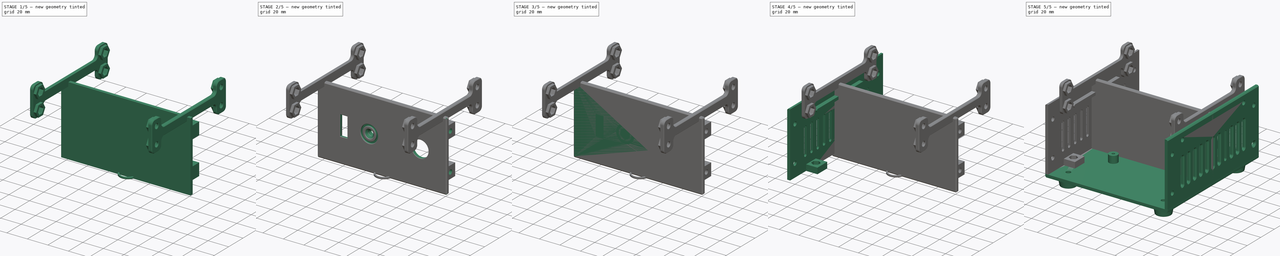
[diagram: build sequence overview — one tinted view per stage of 5, left to right]
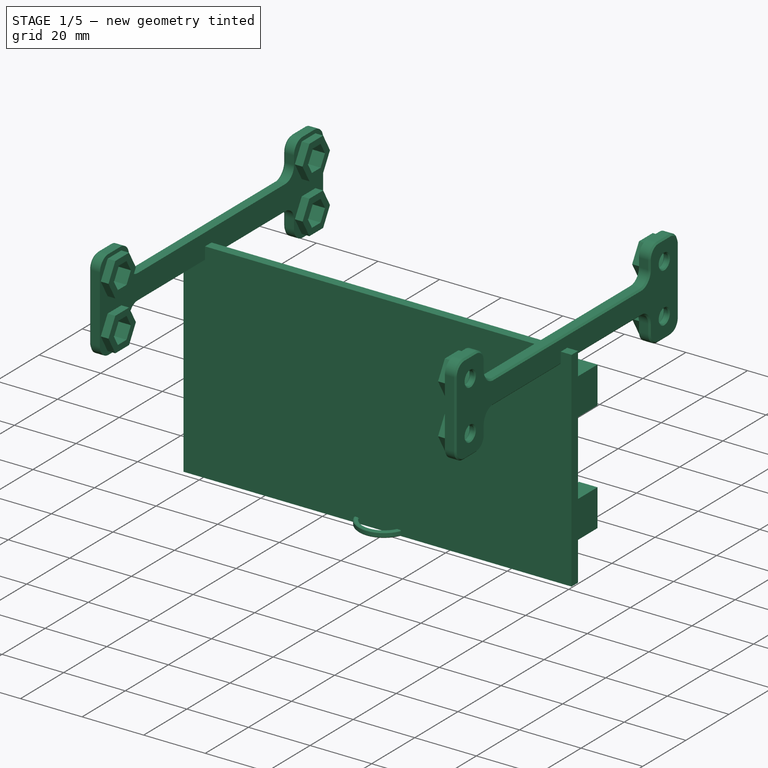
[diagram: stage 1 of 5 — iso view after this stage's code; geometry added in this stage tinted green]
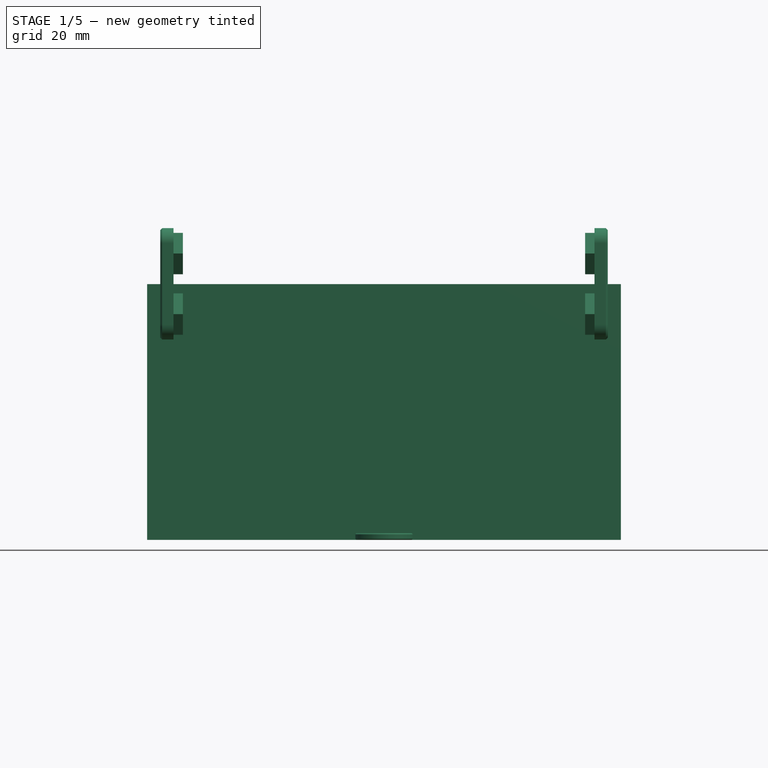
[diagram: stage 1 of 5 — front view after this stage's code; geometry added in this stage tinted green]
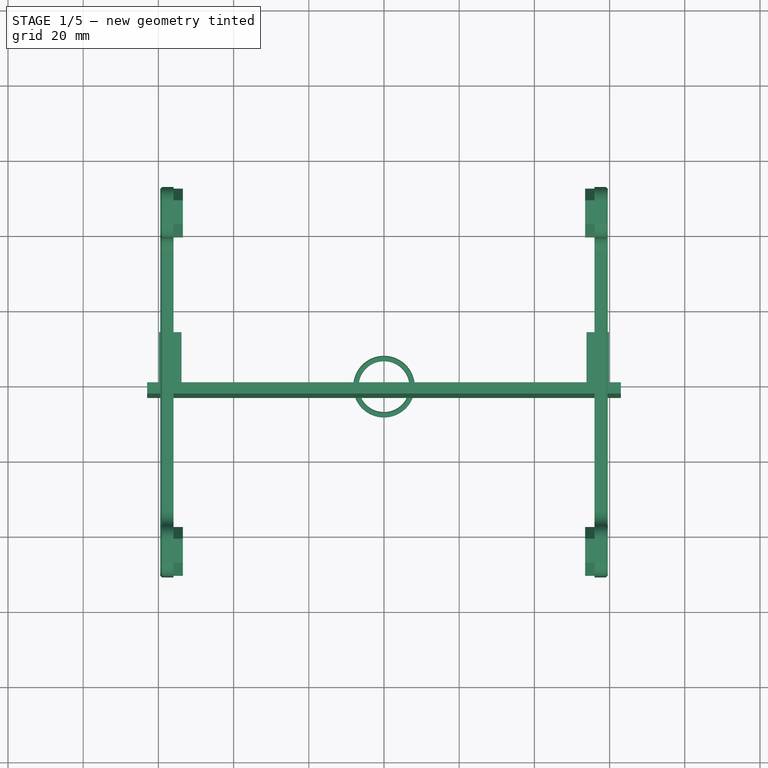
[diagram: stage 1 of 5 — top view after this stage's code; geometry added in this stage tinted green]
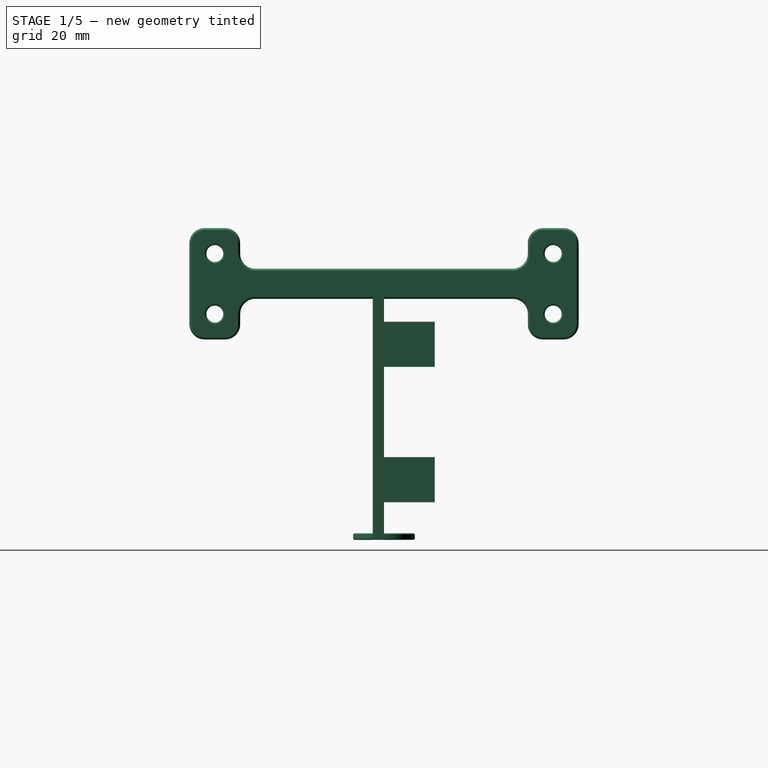
[diagram: stage 1 of 5 — right view after this stage's code; geometry added in this stage tinted green]
FCSTD DOCUMENT  (FreeCAD 0.19R14555 (Git shallow))
Label: Bottom Cap Assembly
License: All rights reserved
LicenseURL: http://en.wikipedia.org/wiki/All_rights_reserved
objects: Sketcher::SketchObject×35, PartDesign::Pad×17, PartDesign::Pocket×17, PartDesign::Chamfer×16, PartDesign::Mirrored×9, PartDesign::Body×8, PartDesign::Fillet×4, Part::FeaturePython×3, PartDesign::LinearPattern×1, PartDesign::Revolution×1, App::Part×1
note: 166 computed .brp shape members not serialized (recipe doc carries the construction recipe); baked Part::Feature solids carry a one-line shape summary decoded from their .brp

FEATURE [Sketcher::SketchObject] Sketch009  label="PCB Screwhole spec"
  ExternalGeometry = -> [Pad005]
  FullyConstrained = false
  MapMode = 5
  Placement = pos=(0,0,10.4) rot=(0,0,1;0rad)
  Support = -> [Pad005]
  sketch-geometry (4):
    g0: Circle CenterX=-30 CenterY=61 CenterZ=0 NormalX=0 NormalY=0 NormalZ=1 AngleXU=0 Radius=1.5
    g1: Circle CenterX=30 CenterY=61 CenterZ=0 NormalX=0 NormalY=0 NormalZ=1 AngleXU=0 Radius=1.5
    g2: Circle CenterX=30 CenterY=-14 CenterZ=0 NormalX=0 NormalY=0 NormalZ=1 AngleXU=0 Radius=1.5
    g3: Circle CenterX=-30 CenterY=-14 CenterZ=0 NormalX=0 NormalY=0 NormalZ=1 AngleXU=0 Radius=1.5
  constraints (8):
    c: Radius(g0) = 1.5
    c: Equal(g0,g1)
    c: Equal(g0,g2)
    c: Equal(g0,g3)
    c: Coincident(g3,g-6)
    c: Coincident(g2,g-5)
    c: Coincident(g0,g-3)
    c: Coincident(g1,g-4)
FEATURE [Sketcher::SketchObject] Sketch010  label="Front Endplate spec"
  FullyConstrained = false
  MapMode = 5
  Placement = pos=(0,0,0) rot=(1,0,0;1.5708rad)
  Support = -> [XZ_Plane003]
  sketch-geometry (4):
    g0: LineSegment StartX=-63 StartY=68 StartZ=0 EndX=63 EndY=68 EndZ=0
    g1: LineSegment StartX=63 StartY=68 StartZ=0 EndX=63 EndY=0 EndZ=0
    g2: LineSegment StartX=63 StartY=0 StartZ=0 EndX=-63 EndY=0 EndZ=0
    g3: LineSegment StartX=-63 StartY=0 StartZ=0 EndX=-63 EndY=68 EndZ=0
  constraints (11):
    c: Coincident(g0,g1)
    c: Coincident(g1,g2)
    c: Coincident(g2,g3)
    c: Coincident(g3,g0)
    c: Horizontal(g2)
    c: Vertical(g1)
    c: Vertical(g3)
    c: Distance(g0) = 126
    c: Symmetric(g0,g0,g-2)
    c: Distance(g3) = 68
    c: PointOnObject(g2,g-1)
FEATURE [PartDesign::Pad] Pad006  label="Make front endplate"
  AllowMultiFace = false
  Direction = (1,1,1)
  Length = 3
  Length2 = 100
  Placement = pos=(0,0,0) rot=(1,0,0;1.5708rad)
  Profile = -> Sketch010
  Type = 0
FEATURE [Sketcher::SketchObject] Sketch011  label="Endplate mounting blocks"
  ExternalGeometry = -> [Pad006]
  FullyConstrained = false
  MapMode = 5
  Placement = pos=(0,-1e-16,0) rot=(-1,0,0;1.5708rad)
  Support = -> [Pad006]
  sketch-geometry (9):
    g0: LineSegment StartX=-59.85 StartY=-10 StartZ=0 EndX=-53.85 EndY=-10 EndZ=0
    g1: LineSegment StartX=-53.85 StartY=-10 StartZ=0 EndX=-53.85 EndY=-22 EndZ=0
    g2: LineSegment StartX=-53.85 StartY=-22 StartZ=0 EndX=-59.85 EndY=-22 EndZ=0
    g3: LineSegment StartX=-59.85 StartY=-22 StartZ=0 EndX=-59.85 EndY=-10 EndZ=0
    g4: LineSegment StartX=-59.85 StartY=-46 StartZ=0 EndX=-53.85 EndY=-46 EndZ=0
    g5: LineSegment StartX=-53.85 StartY=-46 StartZ=0 EndX=-53.85 EndY=-58 EndZ=0
    g6: LineSegment StartX=-53.85 StartY=-58 StartZ=0 EndX=-59.85 EndY=-58 EndZ=0
    g7: LineSegment StartX=-59.85 StartY=-58 StartZ=0 EndX=-59.85 EndY=-46 EndZ=0
    g8: LineSegment StartX=-59.85 StartY=-22 StartZ=0 EndX=-59.85 EndY=-46 EndZ=0
  constraints (26):
    c: Coincident(g0,g1)
    c: Coincident(g1,g2)
    c: Coincident(g2,g3)
    c: Coincident(g3,g0)
    c: Horizontal(g0)
    c: Horizontal(g2)
    c: Vertical(g1)
    c: Vertical(g3)
    c: Coincident(g4,g5)
    c: Coincident(g5,g6)
    c: Coincident(g6,g7)
    c: Coincident(g7,g4)
    c: Horizontal(g4)
    c: Horizontal(g6)
    c: Vertical(g5)
    c: Vertical(g7)
    c: Equal(g0,g4)
    c: Equal(g5,g1)
    c: Distance(g0) = 6
    c: DistanceY(g0) = -10
    c: DistanceY(g-3,g6) = 10
    c: DistanceX(g-3,g6) = 3.15
    c: Coincident(g4,g8)
    c: Vertical(g8)
    c: Coincident(g8,g2)
    c: Distance(g1) = 12
FEATURE [PartDesign::Pad] Pad007
  AllowMultiFace = false
  BaseFeature = -> Pad006
  Direction = (1,1,1)
  Length = 13.5
  Length2 = 100
  Placement = pos=(0,0,0) rot=(1,0,0;1.5708rad)
  Profile = -> Sketch011
  Type = 0
FEATURE [PartDesign::Mirrored] Mirrored002
  BaseFeature = -> Pad007
  MirrorPlane = -> YZ_Plane003
  Originals = -> [Pad007]
  Placement = pos=(0,0,0) rot=(1,0,0;1.5708rad)
FEATURE [Sketcher::SketchObject] Sketch027  label="Joining Bar spec"
  FullyConstrained = true
  MapMode = 5
  Placement = pos=(0,0,0) rot=(0.57735,0.57735,0.57735;2.0944rad)
  Support = -> [YZ_Plane006]
  sketch-geometry (20):
    g0: LineSegment StartX=-38.25 StartY=82.9 StartZ=0 EndX=-38.25 EndY=72.1 EndZ=0
    g1: LineSegment StartX=-38.25 StartY=72.1 StartZ=0 EndX=38.25 EndY=72.1 EndZ=0
    g2: LineSegment StartX=38.25 StartY=72.1 StartZ=0 EndX=38.25 EndY=82.9 EndZ=0
    g3: LineSegment StartX=38.25 StartY=82.9 StartZ=0 EndX=51.75 EndY=82.9 EndZ=0
    g4: LineSegment StartX=51.75 StartY=82.9 StartZ=0 EndX=51.75 EndY=53.3 EndZ=0
    g5: LineSegment StartX=51.75 StartY=53.3 StartZ=0 EndX=38.25 EndY=53.3 EndZ=0
    g6: LineSegment StartX=38.25 StartY=53.3 StartZ=0 EndX=38.25 EndY=64.1 EndZ=0
    g7: LineSegment StartX=38.25 StartY=64.1 StartZ=0 EndX=-38.25 EndY=64.1 EndZ=0
    g8: LineSegment StartX=-38.25 StartY=64.1 StartZ=0 EndX=-38.25 EndY=53.3 EndZ=0
    g9: LineSegment StartX=-38.25 StartY=53.3 StartZ=0 EndX=-51.75 EndY=53.3 EndZ=0
    g10: LineSegment StartX=-51.75 StartY=53.3 StartZ=0 EndX=-51.75 EndY=82.9 EndZ=0
    g11: LineSegment StartX=-51.75 StartY=82.9 StartZ=0 EndX=-38.25 EndY=82.9 EndZ=0
    g12: Circle CenterX=45 CenterY=60.05 CenterZ=0 NormalX=0 NormalY=0 NormalZ=1 AngleXU=0 Radius=2.25
    g13: Circle CenterX=45 CenterY=76.15 CenterZ=0 NormalX=0 NormalY=0 NormalZ=1 AngleXU=0 Radius=2.25
    g14: LineSegment StartX=45 StartY=57.8 StartZ=0 EndX=45 EndY=53.3 EndZ=0
    g15: LineSegment StartX=42.75 StartY=60.05 StartZ=0 EndX=38.25 EndY=60.05 EndZ=0
    g16: LineSegment StartX=47.25 StartY=60.05 StartZ=0 EndX=51.75 EndY=60.05 EndZ=0
    g17: Circle CenterX=-45 CenterY=76.15 CenterZ=0 NormalX=0 NormalY=0 NormalZ=1 AngleXU=0 Radius=2.25
    g18: Circle CenterX=-45 CenterY=60.05 CenterZ=0 NormalX=0 NormalY=0 NormalZ=1 AngleXU=0 Radius=2.25
    g19: LineSegment StartX=51.75 StartY=68.1 StartZ=0 EndX=-51.75 EndY=68.1 EndZ=0
  constraints (52):
    c: Coincident(g0,g1)
    c: Coincident(g1,g2)
    c: Coincident(g2,g3)
    c: Coincident(g3,g4)
    c: Coincident(g4,g5)
    c: Coincident(g5,g6)
    c: Coincident(g6,g7)
    c: Coincident(g7,g8)
    c: Coincident(g8,g9)
    c: Coincident(g9,g10)
    c: Coincident(g10,g11)
    c: Coincident(g11,g0)
    c: Horizontal(g11)
    c: Horizontal(g9)
    c: Horizontal(g7)
    c: Horizontal(g3)
    c: Horizontal(g5)
    c: Vertical(g10)
    c: Vertical(g0)
    c: Vertical(g8)
    c: Vertical(g2)
    c: Vertical(g6)
    c: Equal(g3,g5)
    c: Equal(g5,g9)
    c: Equal(g9,g11)
    c: Equal(g0,g8)
    c: Equal(g8,g2)
    c: Equal(g2,g6)
    c: Symmetric(g1,g0,g-2)
    c: Distance(g0,g7) = 8
    c: Distance(g13,g12) = 16.1
    c: Perpendicular(g16,g12) = 1.5708
    c: Perpendicular(g15,g12) = 1.5708
    c: Perpendicular(g16,g4) = 4.71239
    c: Perpendicular(g15,g6) = 4.71239
    c: Perpendicular(g14,g12) = 1.5708
    c: Perpendicular(g14,g5) = 4.71239
    c: Radius(g17) = 2.25
    c: Equal(g17,g18)
    c: Equal(g17,g13)
    c: Equal(g17,g12)
    c: Perpendicular(g19,g10) = 4.71239
    c: Perpendicular(g19,g4) = 1.5708
    c: Symmetric(g9,g10,g19)
    c: Symmetric(g17,g18,g19)
    c: Symmetric(g13,g12,g19)
    c: Equal(g15,g16)
    c: Equal(g15,g14)
    c: Symmetric(g18,g12,g-2)
    c: Distance(g15) = 4.5
    c: Distance(g17,g13) = 90
    c: DistanceY(g19) = 68.1
FEATURE [PartDesign::Pad] Pad010  label="Make Joining bar"
  AllowMultiFace = false
  Direction = (1,1,1)
  Length = 3.5
  Length2 = 100
  Placement = pos=(0,0,0) rot=(0.57735,0.57735,0.57735;2.0944rad)
  Profile = -> Sketch027
  Type = 0
FEATURE [Sketcher::SketchObject] Sketch028  label="Nut trap outer walls"
  ExternalGeometry = -> [Pad010]
  FullyConstrained = true
  MapMode = 5
  Placement = pos=(-1.51e-14,0,0) rot=(0.57735,0.57735,-0.57735;4.18879rad)
  Support = -> [Pad010]
  sketch-geometry (16):
    g0: LineSegment StartX=48.1754 StartY=-65.55 StartZ=0 EndX=51.3509 EndY=-60.05 EndZ=0
    g1: LineSegment StartX=51.3509 StartY=-60.05 StartZ=0 EndX=48.1754 EndY=-54.55 EndZ=0
    g2: LineSegment StartX=48.1754 StartY=-54.55 StartZ=0 EndX=41.8246 EndY=-54.55 EndZ=0
    g3: LineSegment StartX=41.8246 StartY=-54.55 StartZ=0 EndX=38.6491 EndY=-60.05 EndZ=0
    g4: LineSegment StartX=38.6491 StartY=-60.05 StartZ=0 EndX=41.8246 EndY=-65.55 EndZ=0
    g5: LineSegment StartX=41.8246 StartY=-65.55 StartZ=0 EndX=48.1754 EndY=-65.55 EndZ=0
    g6: Circle CenterX=45 CenterY=-60.05 CenterZ=0 NormalX=0 NormalY=0 NormalZ=1 AngleXU=0 Radius=6.35085
    g7: LineSegment StartX=48.1754 StartY=-81.65 StartZ=0 EndX=51.3509 EndY=-76.15 EndZ=0
    g8: LineSegment StartX=51.3509 StartY=-76.15 StartZ=0 EndX=48.1754 EndY=-70.65 EndZ=0
    g9: LineSegment StartX=48.1754 StartY=-70.65 StartZ=0 EndX=41.8246 EndY=-70.65 EndZ=0
    g10: LineSegment StartX=41.8246 StartY=-70.65 StartZ=0 EndX=38.6491 EndY=-76.15 EndZ=0
    g11: LineSegment StartX=38.6491 StartY=-76.15 StartZ=0 EndX=41.8246 EndY=-81.65 EndZ=0
    g12: LineSegment StartX=41.8246 StartY=-81.65 StartZ=0 EndX=48.1754 EndY=-81.65 EndZ=0
    g13: Circle CenterX=45 CenterY=-76.15 CenterZ=0 NormalX=0 NormalY=0 NormalZ=1 AngleXU=0 Radius=6.35085
    g14: Circle CenterX=45 CenterY=-60.05 CenterZ=0 NormalX=0 NormalY=0 NormalZ=1 AngleXU=0 Radius=2.25
    g15: Circle CenterX=45 CenterY=-76.15 CenterZ=0 NormalX=0 NormalY=0 NormalZ=1 AngleXU=0 Radius=2.25
  constraints (36):
    c: Coincident(g0,g1)
    c: Coincident(g1,g2)
    c: Coincident(g2,g3)
    c: Coincident(g3,g4)
    c: Coincident(g4,g5)
    c: Coincident(g5,g0)
    c: Equal(g0, g1-g5) x5
    c: PointOnObject(g0,g6)
    c: PointOnObject(g1,g6)
    c: PointOnObject(g2,g6)
    c: PointOnObject(g3,g6)
    c: PointOnObject(g4,g6)
    c: PointOnObject(g5,g6)
    c: Horizontal(g2)
    c: Coincident(g7,g8)
    c: Coincident(g8,g9)
    c: Coincident(g9,g10)
    c: Coincident(g10,g11)
    c: Coincident(g11,g12)
    c: Coincident(g12,g7)
    c: Equal(g7, g8-g12) x5
    c: PointOnObject(g7,g13)
    c: PointOnObject(g8,g13)
    c: PointOnObject(g9,g13)
    c: PointOnObject(g10,g13)
    c: PointOnObject(g11,g13)
    c: PointOnObject(g12,g13)
    c: Horizontal(g9)
    c: Equal(g13,g6)
    c: Distance(g2,g4) = 11
    c: Coincident(g6,g-4)
    c: Coincident(g13,g-3)
    c: Coincident(g15,g13)
    c: Coincident(g14,g6)
    c: Equal(g14,g15)
    c: Equal(g15,g-3)
FEATURE [PartDesign::Pad] Pad011  label="Add nut trap outer walls"
  AllowMultiFace = false
  BaseFeature = -> Pad010
  Direction = (1,1,1)
  Length = 2.5
  Length2 = 100
  Placement = pos=(0,0,0) rot=(0.57735,0.57735,0.57735;2.0944rad)
  Profile = -> Sketch028
  Type = 0
FEATURE [PartDesign::Mirrored] Mirrored007  label="Add mirror of nut trap outer walls"
  BaseFeature = -> Pad011
  MirrorPlane = -> Sketch028 [V_Axis]
  Originals = -> [Pad011]
  Placement = pos=(0,0,0) rot=(0.57735,0.57735,0.57735;2.0944rad)
FEATURE [Sketcher::SketchObject] Sketch029  label="Nut trap spec for bar"
  ExternalGeometry = -> [Mirrored007]
  FullyConstrained = true
  MapMode = 5
  Placement = pos=(-2.5,1.7e-15,-1.4e-15) rot=(0.57735,0.57735,-0.57735;4.18879rad)
  Support = -> [Mirrored007]
  sketch-geometry (14):
    g0: LineSegment StartX=-42.9793 StartY=-63.55 StartZ=0 EndX=-40.9585 EndY=-60.05 EndZ=0
    g1: LineSegment StartX=-40.9585 StartY=-60.05 StartZ=0 EndX=-42.9793 EndY=-56.55 EndZ=0
    g2: LineSegment StartX=-42.9793 StartY=-56.55 StartZ=0 EndX=-47.0207 EndY=-56.55 EndZ=0
    g3: LineSegment StartX=-47.0207 StartY=-56.55 StartZ=0 EndX=-49.0415 EndY=-60.05 EndZ=0
    g4: LineSegment StartX=-49.0415 StartY=-60.05 StartZ=0 EndX=-47.0207 EndY=-63.55 EndZ=0
    g5: LineSegment StartX=-47.0207 StartY=-63.55 StartZ=0 EndX=-42.9793 EndY=-63.55 EndZ=0
    g6: Circle CenterX=-45 CenterY=-60.05 CenterZ=0 NormalX=0 NormalY=0 NormalZ=1 AngleXU=0 Radius=4.04145
    g7: LineSegment StartX=-42.9793 StartY=-79.65 StartZ=0 EndX=-40.9585 EndY=-76.15 EndZ=0
    g8: LineSegment StartX=-40.9585 StartY=-76.15 StartZ=0 EndX=-42.9793 EndY=-72.65 EndZ=0
    g9: LineSegment StartX=-42.9793 StartY=-72.65 StartZ=0 EndX=-47.0207 EndY=-72.65 EndZ=0
    g10: LineSegment StartX=-47.0207 StartY=-72.65 StartZ=0 EndX=-49.0415 EndY=-76.15 EndZ=0
    g11: LineSegment StartX=-49.0415 StartY=-76.15 StartZ=0 EndX=-47.0207 EndY=-79.65 EndZ=0
    g12: LineSegment StartX=-47.0207 StartY=-79.65 StartZ=0 EndX=-42.9793 EndY=-79.65 EndZ=0
    g13: Circle CenterX=-45 CenterY=-76.15 CenterZ=0 NormalX=0 NormalY=0 NormalZ=1 AngleXU=0 Radius=4.04145
  constraints (32):
    c: Coincident(g0,g1)
    c: Coincident(g1,g2)
    c: Coincident(g2,g3)
    c: Coincident(g3,g4)
    c: Coincident(g4,g5)
    c: Coincident(g5,g0)
    c: Equal(g0, g1-g5) x5
    c: PointOnObject(g0,g6)
    c: PointOnObject(g1,g6)
    c: PointOnObject(g2,g6)
    c: PointOnObject(g3,g6)
    c: PointOnObject(g4,g6)
    c: PointOnObject(g5,g6)
    c: Coincident(g7,g8)
    c: Coincident(g8,g9)
    c: Coincident(g9,g10)
    c: Coincident(g10,g11)
    c: Coincident(g11,g12)
    c: Coincident(g12,g7)
    c: Equal(g7, g8-g12) x5
    c: PointOnObject(g7,g13)
    c: PointOnObject(g8,g13)
    c: PointOnObject(g9,g13)
    c: PointOnObject(g10,g13)
    c: PointOnObject(g11,g13)
    c: PointOnObject(g12,g13)
    c: Horizontal(g5)
    c: Horizontal(g9)
    c: Coincident(g6,g-3)
    c: Coincident(g13,g-4)
    c: Equal(g6,g13)
    c: Distance(g0,g1) = 7
FEATURE [PartDesign::Pocket] Pocket015  label="Add nut traps for bar"
  AllowMultiFace = false
  BaseFeature = -> Mirrored007
  Length = 4
  Length2 = 100
  Placement = pos=(0,0,0) rot=(0.57735,0.57735,0.57735;2.0944rad)
  Profile = -> Sketch029
  Type = 0
FEATURE [PartDesign::Mirrored] Mirrored008  label="Add other nut traps for bar"
  BaseFeature = -> Pocket015
  MirrorPlane = -> XZ_Plane006
  Originals = -> [Pocket015]
  Placement = pos=(0,0,0) rot=(0.57735,0.57735,0.57735;2.0944rad)
FEATURE [PartDesign::Fillet] Fillet002  label="Round corners off and Dogbone!"
  Base = -> Mirrored008 [Edge8,Edge58,Edge1,Edge2,Edge5,Edge60,Edge63,Edge64,Edge62,Edge59,Edge57,Edge61]
  BaseFeature = -> Mirrored008
  Placement = pos=(0,0,0) rot=(0.57735,0.57735,0.57735;2.0944rad)
  Radius = 4
  SupportTransform = false
FEATURE [PartDesign::Chamfer] Chamfer013  label="Screw penetration aid chamfers"
  Angle = 45
  Base = -> Fillet002 [Face52,Face51,Face54,Face53]
  BaseFeature = -> Fillet002
  ChamferType = 0
  FlipDirection = false
  Placement = pos=(0,0,0) rot=(0.57735,0.57735,0.57735;2.0944rad)
  Size = 0.35
  Size2 = 1
  SupportTransform = false
FEATURE [PartDesign::Chamfer] Chamfer014  label="Print and fitting aid chamfer"
  Angle = 45
  Base = -> Chamfer013 [Edge6]
  BaseFeature = -> Chamfer013
  ChamferType = 0
  FlipDirection = false
  Placement = pos=(0,0,0) rot=(0.57735,0.57735,0.57735;2.0944rad)
  Size = 0.5
  Size2 = 1
  SupportTransform = false
FEATURE [Sketcher::SketchObject] Sketch033  label="Hoop profile"
  FullyConstrained = false
  MapMode = 5
  Support = -> [XY_Plane007]
  sketch-geometry (3):
    g0: Circle CenterX=0 CenterY=0 CenterZ=0 NormalX=0 NormalY=0 NormalZ=1 AngleXU=0 Radius=6.75
    g1: Circle CenterX=0 CenterY=0 CenterZ=0 NormalX=0 NormalY=0 NormalZ=1 AngleXU=0 Radius=8.2
    g2: LineSegment StartX=-8.2 StartY=1.2e-15 StartZ=0 EndX=-6.75 EndY=1.2e-15 EndZ=0
  constraints (7):
    c: Coincident(g0,g-1)
    c: Radius(g0) = 6.75
    c: Coincident(g1,g0)
    c: Perpendicular(g2,g0) = 4.71239
    c: Horizontal(g2)
    c: Perpendicular(g2,g1) = 4.71239
    c: Distance(g2) = 1.45
FEATURE [PartDesign::Pad] Pad014  label="Make hoop"
  AllowMultiFace = false
  Direction = (1,1,1)
  Length = 1.75
  Length2 = 100
  Profile = -> Sketch033
  Type = 0
FEATURE [PartDesign::Body] Body003  label="Front Endplate"
  Group = -> [Sketch010,Pad006,Sketch011,Pad007,Mirrored002,Sketch012,Pocket004,Sketch013,Pocket005,Chamfer003,Chamfer004,Chamfer007,Sketch024,Mirrored005,Pocket012,Sketch025,Pocket013,Chamfer010,Sketch026,Pocket014,Chamfer011,Chamfer012,Sketch030,Pad012,Sketch031,Pocket016,Sketch035,Pad016,Fillet003]
  Origin = -> Origin003
  Placement = pos=(0,-66.95,0) rot=(0,0,1;0rad)
  Tip = -> Fillet003
FEATURE [PartDesign::Chamfer] Chamfer016  label="Chamfer hoop"
  Angle = 45
  Base = -> Pad014 [Face4,Face3]
  BaseFeature = -> Pad014
  ChamferType = 0
  FlipDirection = false
  Size = 0.25
  Size2 = 1
  SupportTransform = false
FEATURE [PartDesign::Body] Body007  label="Hoop"
  Group = -> [Sketch033,Pad014,Chamfer016]
  Origin = -> Origin007
  Placement = pos=(-12.4,-68.6,34) rot=(0.999924,0.008726,-0.008726;1.57087rad)
  Tip = -> Chamfer016
FEATURE [Part::FeaturePython] Array002  label="Joining bar array"  # Draft array (typed FeaturePython)
  Angle = 360
  ArrayType = 1
  Axis = (0,0,1)
  Base = -> Body006
  Center = (0,0,0)
  Fuse = false
  IntervalAxis = (0,0,0)
  IntervalX = (1,0,0)
  IntervalY = (0,1,0)
  IntervalZ = (0,0,1)
  NumberPolar = 2
  NumberX = 2
  NumberY = 2
  NumberZ = 1
FEATURE [App::Part] Part  label="Final bottom cap assembly"
  Group = -> [Body007,Body004,Array,Body001,Array002,Body006,Array001,Body005,Body003,Body002,Body]
  Origin = -> Origin008
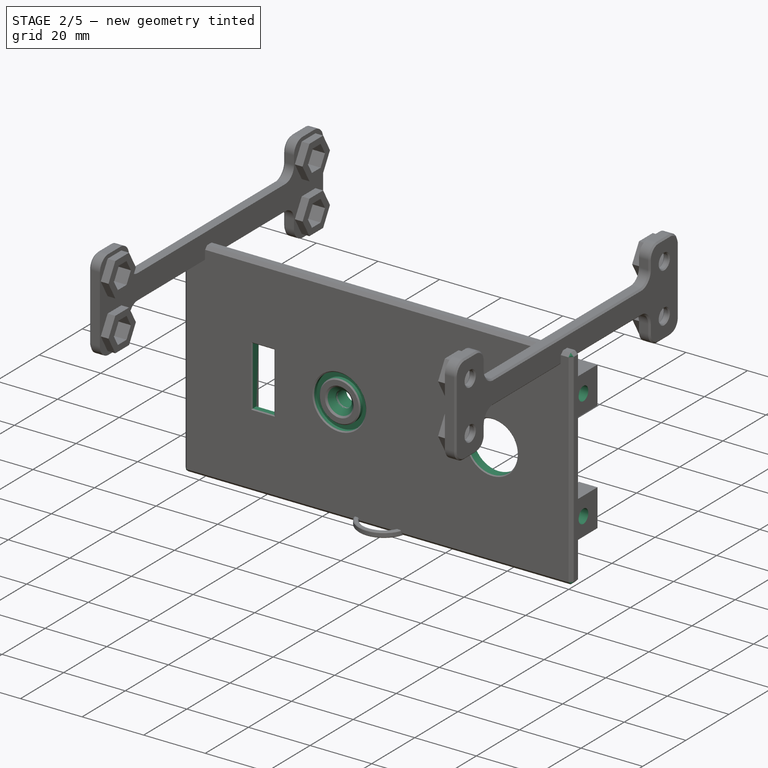
[diagram: stage 2 of 5 — iso view after this stage's code; geometry added in this stage tinted green]
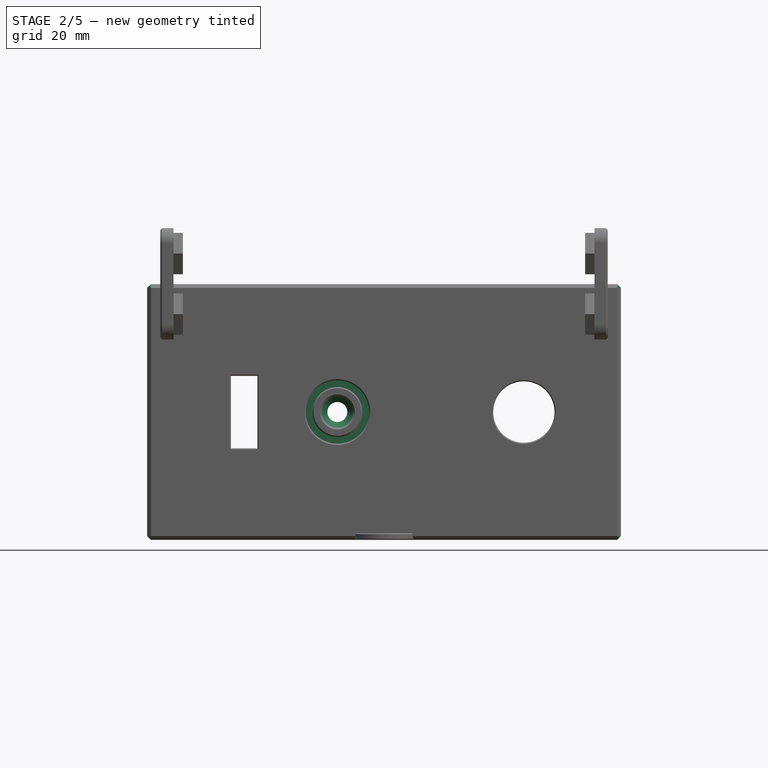
[diagram: stage 2 of 5 — front view after this stage's code; geometry added in this stage tinted green]
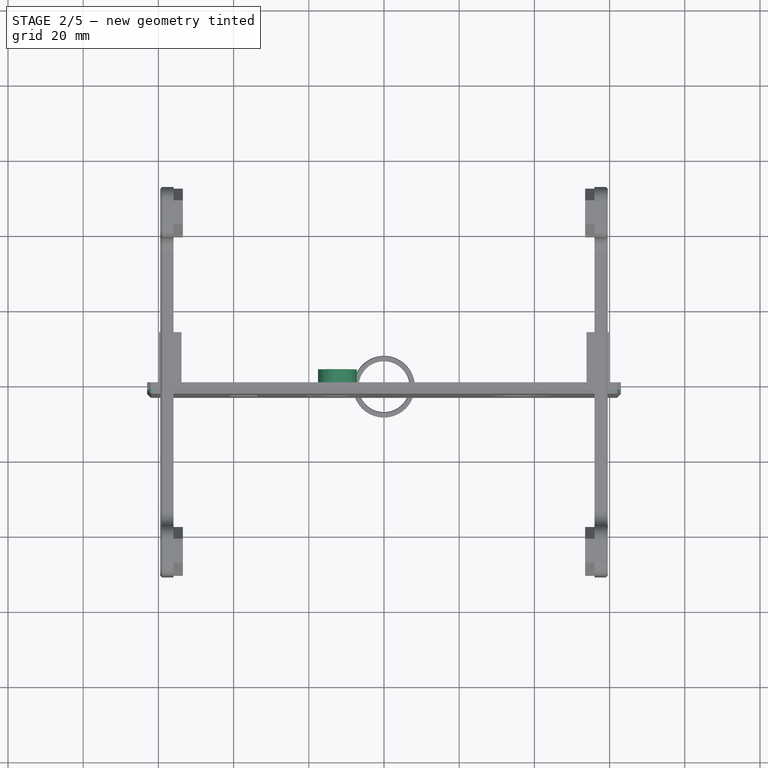
[diagram: stage 2 of 5 — top view after this stage's code; geometry added in this stage tinted green]
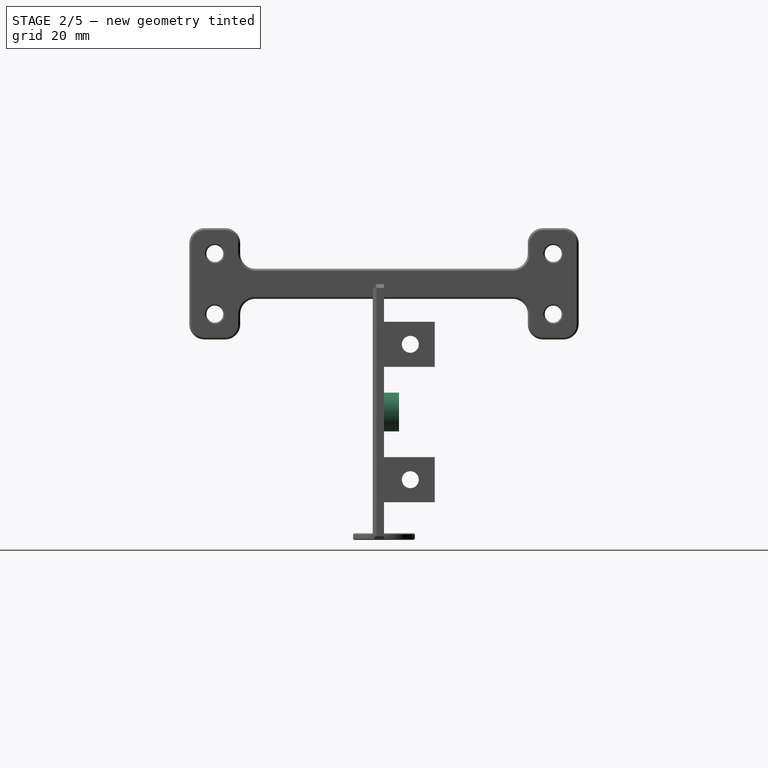
[diagram: stage 2 of 5 — right view after this stage's code; geometry added in this stage tinted green]
FEATURE [Sketcher::SketchObject] Sketch012  label="Side mounting hole spec"
  ExternalGeometry = -> [Mirrored002]
  FullyConstrained = false
  MapMode = 5
  Placement = pos=(59.85,-1.32e-14,1.32e-14) rot=(0.707107,0,0.707107;3.14159rad)
  Support = -> [Mirrored002]
  sketch-geometry (6):
    g0: Circle CenterX=16 CenterY=-7 CenterZ=0 NormalX=0 NormalY=0 NormalZ=1 AngleXU=0 Radius=2.25
    g1: Circle CenterX=52 CenterY=-7 CenterZ=0 NormalX=0 NormalY=0 NormalZ=1 AngleXU=0 Radius=2.25
    g2: LineSegment StartX=52 StartY=-7 StartZ=0 EndX=52 EndY=-13.5 EndZ=0
    g3: LineSegment StartX=52 StartY=-7 StartZ=0 EndX=58 EndY=-7 EndZ=0
    g4: LineSegment StartX=52 StartY=-7 StartZ=0 EndX=16 EndY=-7 EndZ=0
    g5: LineSegment StartX=16 StartY=-7 StartZ=0 EndX=16 EndY=-13.5 EndZ=0
  constraints (15):
    c: Coincident(g2,g1)
    c: Coincident(g2,g3)
    c: Horizontal(g3)
    c: PointOnObject(g2,g-5)
    c: Symmetric(g-6,g-5,g2)
    c: PointOnObject(g3,g-6)
    c: DistanceY(g3,g-6) = 7
    c: Coincident(g4,g1)
    c: Coincident(g4,g0)
    c: Horizontal(g4)
    c: Coincident(g5,g0)
    c: Perpendicular(g5,g-3) = 4.71239
    c: Symmetric(g-3,g-4,g5)
    c: Radius(g0) = 2.25
    c: Equal(g0,g1)
FEATURE [PartDesign::Pocket] Pocket004  label="Add side mounting holes001"
  AllowMultiFace = false
  BaseFeature = -> Mirrored002
  Length = 5
  Length2 = 100
  Placement = pos=(0,0,0) rot=(1,0,0;1.5708rad)
  Profile = -> Sketch012
  Type = 1
FEATURE [Sketcher::SketchObject] Sketch013  label="Nut trap spec"
  ExternalGeometry = -> [Pocket004]
  FullyConstrained = false
  MapMode = 5
  Placement = pos=(-53.85,0,0) rot=(0.707107,0,0.707107;3.14159rad)
  Support = -> [Pocket004]
  sketch-geometry (14):
    g0: LineSegment StartX=19.5 StartY=-9.02073 StartZ=0 EndX=19.5 EndY=-4.97927 EndZ=0
    g1: LineSegment StartX=19.5 StartY=-4.97927 StartZ=0 EndX=16 EndY=-2.95855 EndZ=0
    g2: LineSegment StartX=16 StartY=-2.95855 StartZ=0 EndX=12.5 EndY=-4.97927 EndZ=0
    g3: LineSegment StartX=12.5 StartY=-4.97927 StartZ=0 EndX=12.5 EndY=-9.02073 EndZ=0
    g4: LineSegment StartX=12.5 StartY=-9.02073 StartZ=0 EndX=16 EndY=-11.0415 EndZ=0
    g5: LineSegment StartX=16 StartY=-11.0415 StartZ=0 EndX=19.5 EndY=-9.02073 EndZ=0
    g6: Circle CenterX=16 CenterY=-7 CenterZ=0 NormalX=0 NormalY=0 NormalZ=1 AngleXU=0 Radius=4.04145
    g7: LineSegment StartX=55.5 StartY=-9.02073 StartZ=0 EndX=55.5 EndY=-4.97927 EndZ=0
    g8: LineSegment StartX=55.5 StartY=-4.97927 StartZ=0 EndX=52 EndY=-2.95855 EndZ=0
    g9: LineSegment StartX=52 StartY=-2.95855 StartZ=0 EndX=48.5 EndY=-4.97927 EndZ=0
    g10: LineSegment StartX=48.5 StartY=-4.97927 StartZ=0 EndX=48.5 EndY=-9.02073 EndZ=0
    g11: LineSegment StartX=48.5 StartY=-9.02073 StartZ=0 EndX=52 EndY=-11.0415 EndZ=0
    g12: LineSegment StartX=52 StartY=-11.0415 StartZ=0 EndX=55.5 EndY=-9.02073 EndZ=0
    g13: Circle CenterX=52 CenterY=-7 CenterZ=0 NormalX=0 NormalY=0 NormalZ=1 AngleXU=0 Radius=4.04145
  constraints (32):
    c: Coincident(g0,g1)
    c: Coincident(g1,g2)
    c: Coincident(g2,g3)
    c: Coincident(g3,g4)
    c: Coincident(g4,g5)
    c: Coincident(g5,g0)
    c: Equal(g0, g1-g5) x5
    c: PointOnObject(g0,g6)
    c: PointOnObject(g1,g6)
    c: PointOnObject(g2,g6)
    c: PointOnObject(g3,g6)
    c: PointOnObject(g4,g6)
    c: PointOnObject(g5,g6)
    c: Coincident(g7,g8)
    c: Coincident(g8,g9)
    c: Coincident(g9,g10)
    c: Coincident(g10,g11)
    c: Coincident(g11,g12)
    c: Coincident(g12,g7)
    c: Equal(g7, g8-g12) x5
    c: PointOnObject(g7,g13)
    c: PointOnObject(g8,g13)
    c: PointOnObject(g9,g13)
    c: PointOnObject(g10,g13)
    c: PointOnObject(g11,g13)
    c: PointOnObject(g12,g13)
    c: Vertical(g0)
    c: Vertical(g7)
    c: Coincident(g6,g-3)
    c: Coincident(g13,g-4)
    c: Distance(g2,g0) = 7
    c: Equal(g13,g6)
FEATURE [PartDesign::Pocket] Pocket005  label="Add nut trap to side mounting lugs"
  AllowMultiFace = false
  BaseFeature = -> Pocket004
  Length = 3.5
  Length2 = 100
  Placement = pos=(0,0,0) rot=(1,0,0;1.5708rad)
  Profile = -> Sketch013
  Type = 0
FEATURE [PartDesign::Chamfer] Chamfer003
  Angle = 45
  Base = -> Pocket005 [Face5]
  BaseFeature = -> Pocket005
  ChamferType = 0
  FlipDirection = false
  Placement = pos=(0,0,0) rot=(1,0,0;1.5708rad)
  Size = 1
  Size2 = 1
  SupportTransform = false
FEATURE [PartDesign::Chamfer] Chamfer004
  Angle = 45
  Base = -> Chamfer003 [Edge1,Edge4]
  BaseFeature = -> Chamfer003
  ChamferType = 0
  FlipDirection = false
  Placement = pos=(0,0,0) rot=(1,0,0;1.5708rad)
  Size = 1
  Size2 = 1
  SupportTransform = false
FEATURE [PartDesign::Chamfer] Chamfer007
  Angle = 45
  Base = -> Chamfer004 [Edge43,Edge42]
  BaseFeature = -> Chamfer004
  ChamferType = 0
  FlipDirection = false
  Placement = pos=(0,0,0) rot=(1,0,0;1.5708rad)
  Size = 1
  Size2 = 1
  SupportTransform = false
FEATURE [PartDesign::Mirrored] Mirrored005  label="Add other side mounting nut traps"
  BaseFeature = -> Chamfer007
  MirrorPlane = -> YZ_Plane003
  Originals = -> [Pocket005]
  Placement = pos=(0,0,0) rot=(1,0,0;1.5708rad)
FEATURE [Sketcher::SketchObject] Sketch024  label="Switchgear holes spec"
  ExternalGeometry = -> [Mirrored005]
  FullyConstrained = false
  MapMode = 5
  Placement = pos=(0,-3,-7e-16) rot=(1,0,0;1.5708rad)
  Support = -> [Mirrored005]
  sketch-geometry (13):
    g0: LineSegment StartX=-40.725 StartY=43.625 StartZ=0 EndX=-33.675 EndY=43.625 EndZ=0
    g1: LineSegment StartX=-33.675 StartY=43.625 StartZ=0 EndX=-33.675 EndY=24.375 EndZ=0
    g2: LineSegment StartX=-33.675 StartY=24.375 StartZ=0 EndX=-40.725 EndY=24.375 EndZ=0
    g3: LineSegment StartX=-40.725 StartY=24.375 StartZ=0 EndX=-40.725 EndY=43.625 EndZ=0
    g4: LineSegment StartX=-40.725 StartY=43.625 StartZ=0 EndX=-33.675 EndY=24.375 EndZ=0
    g5: LineSegment StartX=-33.675 StartY=43.625 StartZ=0 EndX=-40.725 EndY=24.375 EndZ=0
    g6: GeomPoint X=-37.2 Y=34 Z=0
    g7: Circle CenterX=-12.4 CenterY=34 CenterZ=0 NormalX=0 NormalY=0 NormalZ=1 AngleXU=0 Radius=2.65
    g8: Circle CenterX=37.2 CenterY=34 CenterZ=0 NormalX=0 NormalY=0 NormalZ=1 AngleXU=0 Radius=8.15
    g9: LineSegment StartX=-37.2 StartY=34 StartZ=0 EndX=-12.4 EndY=34 EndZ=0
    g10: LineSegment StartX=-12.4 StartY=34 StartZ=0 EndX=12.4 EndY=34 EndZ=0
    g11: LineSegment StartX=12.4 StartY=34 StartZ=0 EndX=37.2 EndY=34 EndZ=0
    g12: LineSegment StartX=-37.2 StartY=34 StartZ=0 EndX=-62 EndY=34 EndZ=0
  constraints (32):
    c: Coincident(g0,g1)
    c: Coincident(g1,g2)
    c: Coincident(g2,g3)
    c: Coincident(g3,g0)
    c: Horizontal(g0)
    c: Horizontal(g2)
    c: Vertical(g1)
    c: Vertical(g3)
    c: Distance(g1) = 19.25
    c: Distance(g0) = 7.05
    c: Coincident(g4,g0)
    c: Coincident(g5,g0)
    c: Coincident(g4,g1)
    c: Coincident(g5,g2)
    c: PointOnObject(g6,g4)
    c: PointOnObject(g6,g5)
    c: Radius(g7) = 2.65
    c: Coincident(g7,g9)
    c: Coincident(g9,g6)
    c: Horizontal(g9)
    c: Equal(g11,g10)
    c: Equal(g10,g9)
    c: Horizontal(g10)
    c: Coincident(g10,g11)
    c: Coincident(g10,g7)
    c: Coincident(g11,g8)
    c: Coincident(g6,g12)
    c: Perpendicular(g12,g-3) = 4.71239
    c: Symmetric(g6,g8,g-2)
    c: Equal(g12,g9)
    c: Symmetric(g-3,g-3,g12)
    c: Radius(g8) = 8.15
FEATURE [PartDesign::Pocket] Pocket012  label="Add switchgear holes"
  AllowMultiFace = false
  BaseFeature = -> Mirrored005
  Length = 5
  Length2 = 100
  Placement = pos=(0,0,0) rot=(1,0,0;1.5708rad)
  Profile = -> Sketch024
  Type = 1
FEATURE [Sketcher::SketchObject] Sketch025  label="Switch backface thinning tool"
  ExternalGeometry = -> [Pocket012]
  FullyConstrained = false
  MapMode = 5
  Placement = pos=(0,-1e-16,0) rot=(-1,0,0;1.5708rad)
  Support = -> [Pocket012]
  sketch-geometry (6):
    g0: LineSegment StartX=-40.725 StartY=-20.375 StartZ=0 EndX=-33.675 EndY=-20.375 EndZ=0
    g1: LineSegment StartX=-33.675 StartY=-20.375 StartZ=0 EndX=-33.675 EndY=-43.625 EndZ=0
    g2: LineSegment StartX=-33.675 StartY=-47.625 StartZ=0 EndX=-40.725 EndY=-47.625 EndZ=0
    g3: LineSegment StartX=-40.725 StartY=-47.625 StartZ=0 EndX=-40.725 EndY=-24.375 EndZ=0
    g4: LineSegment StartX=-33.675 StartY=-43.625 StartZ=0 EndX=-33.675 EndY=-47.625 EndZ=0
    g5: LineSegment StartX=-40.725 StartY=-24.375 StartZ=0 EndX=-40.725 EndY=-20.375 EndZ=0
  constraints (16):
    c: Coincident(g0,g1)
    c: Coincident(g2,g3)
    c: Horizontal(g0)
    c: Horizontal(g2)
    c: Vertical(g1)
    c: Vertical(g3)
    c: Coincident(g1,g4)
    c: Coincident(g1,g-4)
    c: Coincident(g4,g2)
    c: Vertical(g4)
    c: Coincident(g3,g-3)
    c: Coincident(g3,g5)
    c: Coincident(g5,g0)
    c: Vertical(g5)
    c: Equal(g5,g4)
    c: Distance(g5) = 4
FEATURE [PartDesign::Pocket] Pocket013  label="Thin backwall for switch to 2mm"
  AllowMultiFace = false
  BaseFeature = -> Pocket012
  Length = 1
  Length2 = 100
  Placement = pos=(0,0,0) rot=(1,0,0;1.5708rad)
  Profile = -> Sketch025
  Type = 0
FEATURE [PartDesign::Chamfer] Chamfer010  label="Make LED hole pretty chamfer"
  Angle = 45
  Base = -> Pocket013 [Edge101]
  BaseFeature = -> Pocket013
  ChamferType = 0
  FlipDirection = false
  Placement = pos=(0,0,0) rot=(1,0,0;1.5708rad)
  Size = 2
  Size2 = 1
  SupportTransform = false
FEATURE [Sketcher::SketchObject] Sketch026  label="Decorative feature for LED hole"
  ExternalGeometry = -> [Chamfer010]
  FullyConstrained = false
  MapMode = 5
  Placement = pos=(0,-3,-7e-16) rot=(1,0,0;1.5708rad)
  Support = -> [Chamfer010]
  sketch-geometry (4):
    g0: Circle CenterX=-12.4 CenterY=34 CenterZ=0 NormalX=0 NormalY=0 NormalZ=1 AngleXU=0 Radius=6.65
    g1: Circle CenterX=-12.4 CenterY=34 CenterZ=0 NormalX=0 NormalY=0 NormalZ=1 AngleXU=0 Radius=8.4
    g2: LineSegment StartX=-12.4 StartY=38.65 StartZ=0 EndX=-12.4 EndY=40.65 EndZ=0
    g3: LineSegment StartX=-5.75 StartY=34 StartZ=0 EndX=-4 EndY=34 EndZ=0
  constraints (10):
    c: Coincident(g0,g1)
    c: Coincident(g0,g-3)
    c: Perpendicular(g2,g-3) = 1.5708
    c: PointOnObject(g2,g0)
    c: Distance(g2) = 2
    c: Vertical(g2)
    c: Horizontal(g3)
    c: Perpendicular(g3,g0) = 1.5708
    c: PointOnObject(g3,g1)
    c: Distance(g3) = 1.75
FEATURE [PartDesign::Pocket] Pocket014  label="Add decorative feature for LED hole"
  AllowMultiFace = false
  BaseFeature = -> Chamfer010
  Length = 1.5
  Length2 = 100
  Placement = pos=(0,0,0) rot=(1,0,0;1.5708rad)
  Profile = -> Sketch026
  Type = 0
FEATURE [PartDesign::Chamfer] Chamfer011  label="Decorative feature easing chamfer"
  Angle = 45
  Base = -> Pocket014 [Edge39,Edge200]
  BaseFeature = -> Pocket014
  ChamferType = 0
  FlipDirection = false
  Placement = pos=(0,0,0) rot=(1,0,0;1.5708rad)
  Size = 0.35
  Size2 = 1
  SupportTransform = false
FEATURE [PartDesign::Chamfer] Chamfer012  label="Switchgear easing-in chamfers"
  Angle = 45
  Base = -> Chamfer011 [Edge206,Edge184,Edge188,Edge205,Edge128]
  BaseFeature = -> Chamfer011
  ChamferType = 0
  FlipDirection = false
  Placement = pos=(0,0,0) rot=(1,0,0;1.5708rad)
  Size = 0.3
  Size2 = 1
  SupportTransform = false
FEATURE [PartDesign::Body] Body006  label="Joining bar"
  Group = -> [Sketch027,Pad010,Sketch028,Pad011,Mirrored007,Sketch029,Pocket015,Mirrored008,Fillet002,Chamfer013,Chamfer014]
  Origin = -> Origin006
  Placement = pos=(56,0,0) rot=(0,0,1;0rad)
  Tip = -> Chamfer014
FEATURE [Sketcher::SketchObject] Sketch030  label="LED guide tube spec"
  ExternalGeometry = -> [Chamfer012]
  FullyConstrained = false
  MapMode = 5
  Placement = pos=(0,-1e-16,0) rot=(-1,0,0;1.5708rad)
  Support = -> [Chamfer012]
  sketch-geometry (3):
    g0: Circle CenterX=-12.4 CenterY=-34 CenterZ=0 NormalX=0 NormalY=0 NormalZ=1 AngleXU=0 Radius=2.65
    g1: Circle CenterX=-12.4 CenterY=-34 CenterZ=0 NormalX=0 NormalY=0 NormalZ=1 AngleXU=0 Radius=5.15
    g2: LineSegment StartX=-9.75 StartY=-34 StartZ=0 EndX=-7.25 EndY=-34 EndZ=0
  constraints (7):
    c: Coincident(g0,g1)
    c: Coincident(g0,g-3)
    c: Equal(g0,g-3)
    c: Horizontal(g2)
    c: Perpendicular(g2,g0) = 1.5708
    c: PointOnObject(g2,g1)
    c: Distance(g2) = 2.5
FEATURE [PartDesign::Pad] Pad012  label="Add LED Guide Tube"
  AllowMultiFace = false
  BaseFeature = -> Chamfer012
  Direction = (1,1,1)
  Length = 4
  Length2 = 100
  Placement = pos=(0,0,0) rot=(1,0,0;1.5708rad)
  Profile = -> Sketch030
  Type = 0
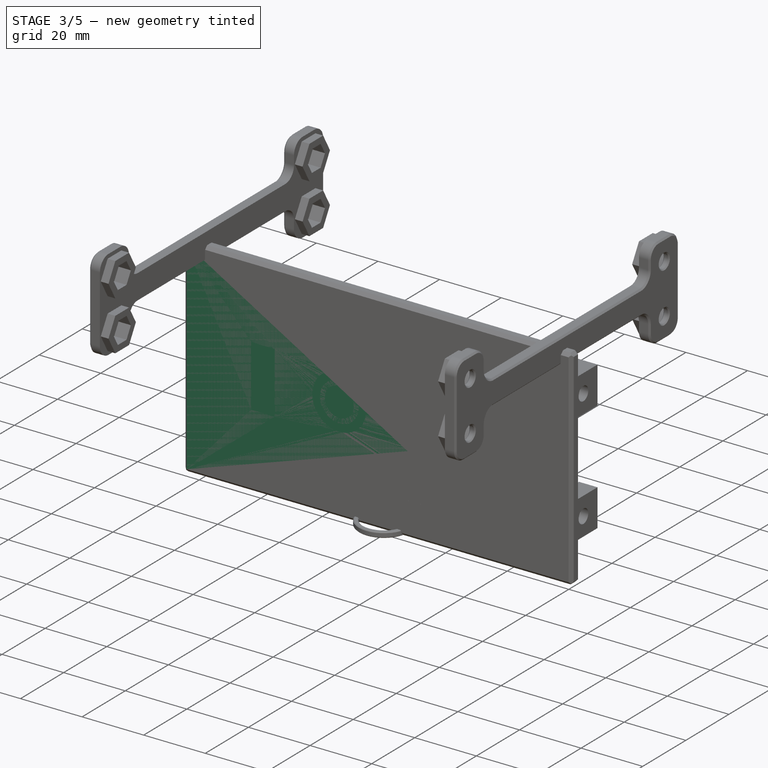
[diagram: stage 3 of 5 — iso view after this stage's code; geometry added in this stage tinted green]
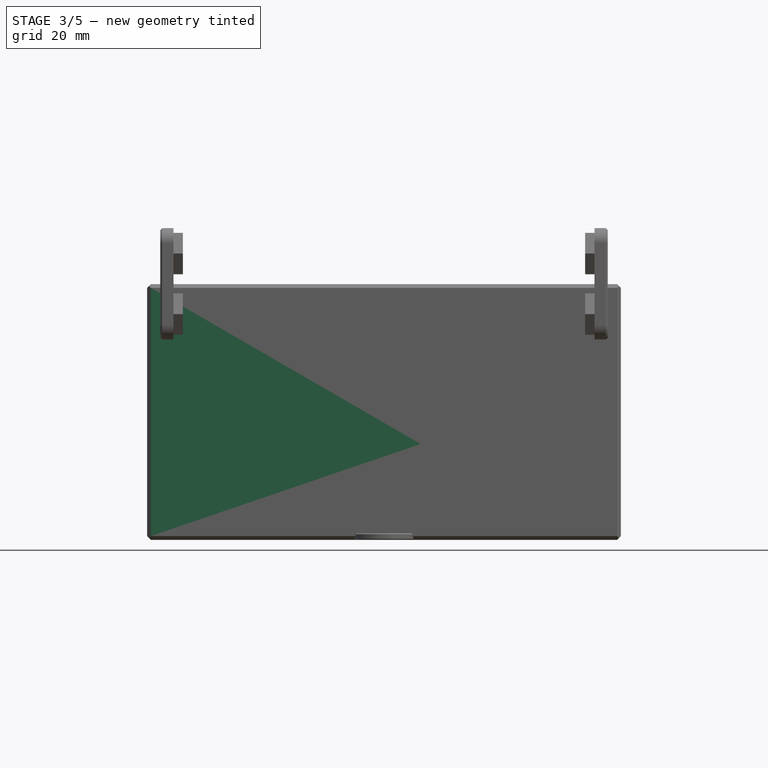
[diagram: stage 3 of 5 — front view after this stage's code; geometry added in this stage tinted green]
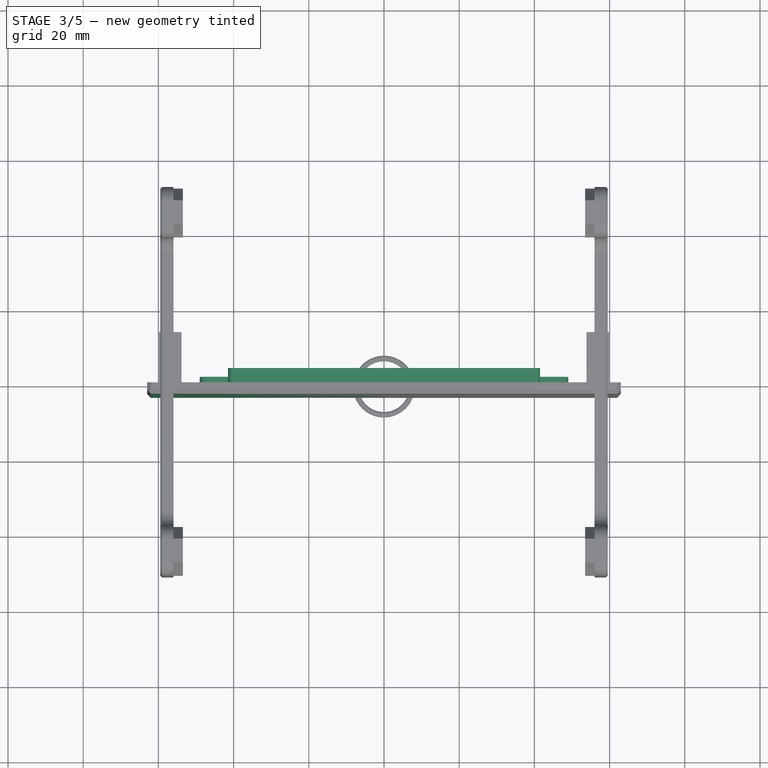
[diagram: stage 3 of 5 — top view after this stage's code; geometry added in this stage tinted green]
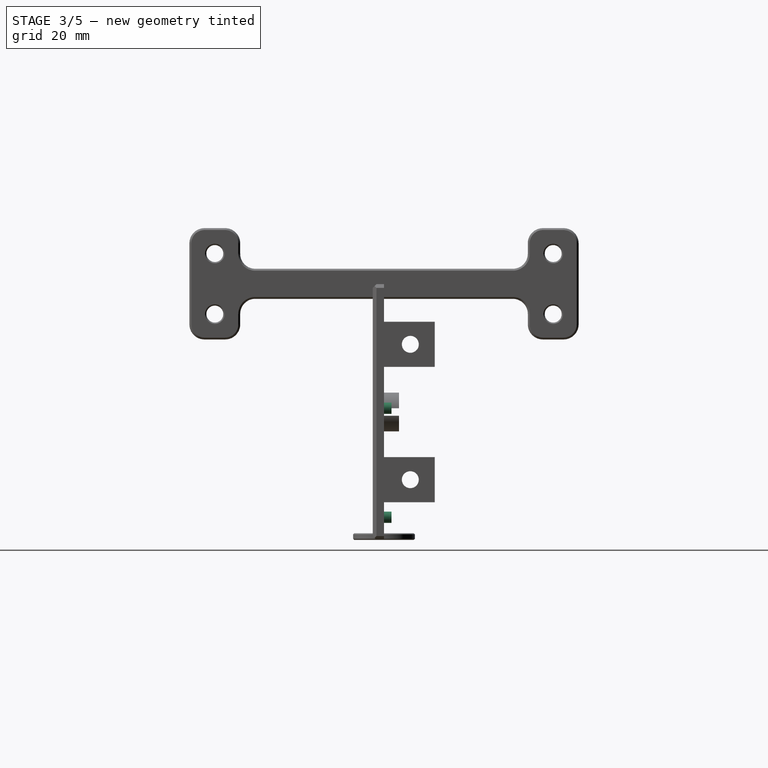
[diagram: stage 3 of 5 — right view after this stage's code; geometry added in this stage tinted green]
FEATURE [Sketcher::SketchObject] Sketch018  label="Rear endplate spec"
  FullyConstrained = false
  MapMode = 5
  Placement = pos=(0,0,0) rot=(1,0,0;1.5708rad)
  Support = -> [XZ_Plane004]
  sketch-geometry (4):
    g0: LineSegment StartX=-63 StartY=68 StartZ=0 EndX=63 EndY=68 EndZ=0
    g1: LineSegment StartX=63 StartY=68 StartZ=0 EndX=63 EndY=0 EndZ=0
    g2: LineSegment StartX=63 StartY=0 StartZ=0 EndX=-63 EndY=0 EndZ=0
    g3: LineSegment StartX=-63 StartY=0 StartZ=0 EndX=-63 EndY=68 EndZ=0
  constraints (11):
    c: Coincident(g0,g1)
    c: Coincident(g1,g2)
    c: Coincident(g2,g3)
    c: Coincident(g3,g0)
    c: Horizontal(g2)
    c: Vertical(g1)
    c: Vertical(g3)
    c: Distance(g0) = 126
    c: Symmetric(g0,g0,g-2)
    c: Distance(g3) = 68
    c: PointOnObject(g2,g-1)
FEATURE [PartDesign::Pad] Pad008  label="Make rear endplate"
  AllowMultiFace = false
  Direction = (1,1,1)
  Length = 3
  Length2 = 100
  Placement = pos=(0,0,0) rot=(1,0,0;1.5708rad)
  Profile = -> Sketch018
  Type = 0
FEATURE [Sketcher::SketchObject] Sketch019  label="Rear endplate mounting blocks"
  ExternalGeometry = -> [Pad008]
  FullyConstrained = false
  MapMode = 5
  Placement = pos=(0,-1e-16,0) rot=(-1,0,0;1.5708rad)
  Support = -> [Pad008]
  sketch-geometry (9):
    g0: LineSegment StartX=-59.85 StartY=-10 StartZ=0 EndX=-53.85 EndY=-10 EndZ=0
    g1: LineSegment StartX=-53.85 StartY=-10 StartZ=0 EndX=-53.85 EndY=-22 EndZ=0
    g2: LineSegment StartX=-53.85 StartY=-22 StartZ=0 EndX=-59.85 EndY=-22 EndZ=0
    g3: LineSegment StartX=-59.85 StartY=-22 StartZ=0 EndX=-59.85 EndY=-10 EndZ=0
    g4: LineSegment StartX=-59.85 StartY=-46 StartZ=0 EndX=-53.85 EndY=-46 EndZ=0
    g5: LineSegment StartX=-53.85 StartY=-46 StartZ=0 EndX=-53.85 EndY=-58 EndZ=0
    g6: LineSegment StartX=-53.85 StartY=-58 StartZ=0 EndX=-59.85 EndY=-58 EndZ=0
    g7: LineSegment StartX=-59.85 StartY=-58 StartZ=0 EndX=-59.85 EndY=-46 EndZ=0
    g8: LineSegment StartX=-59.85 StartY=-22 StartZ=0 EndX=-59.85 EndY=-46 EndZ=0
  constraints (26):
    c: Coincident(g0,g1)
    c: Coincident(g1,g2)
    c: Coincident(g2,g3)
    c: Coincident(g3,g0)
    c: Horizontal(g0)
    c: Horizontal(g2)
    c: Vertical(g1)
    c: Vertical(g3)
    c: Coincident(g4,g5)
    c: Coincident(g5,g6)
    c: Coincident(g6,g7)
    c: Coincident(g7,g4)
    c: Horizontal(g4)
    c: Horizontal(g6)
    c: Vertical(g5)
    c: Vertical(g7)
    c: Equal(g0,g4)
    c: Equal(g5,g1)
    c: Distance(g0) = 6
    c: DistanceY(g0) = -10
    c: DistanceY(g-3,g6) = 10
    c: DistanceX(g-3,g6) = 3.15
    c: Coincident(g4,g8)
    c: Vertical(g8)
    c: Coincident(g8,g2)
    c: Distance(g1) = 12
FEATURE [PartDesign::Pad] Pad009  label="Add rear endplate mounting blocks"
  AllowMultiFace = false
  BaseFeature = -> Pad008
  Direction = (1,1,1)
  Length = 13.5
  Length2 = 100
  Placement = pos=(0,0,0) rot=(1,0,0;1.5708rad)
  Profile = -> Sketch019
  Type = 0
FEATURE [PartDesign::Mirrored] Mirrored004
  BaseFeature = -> Pad009
  MirrorPlane = -> YZ_Plane004
  Originals = -> [Pad009]
  Placement = pos=(0,0,0) rot=(1,0,0;1.5708rad)
FEATURE [Sketcher::SketchObject] Sketch020  label="Side mounting holes spec"
  ExternalGeometry = -> [Mirrored004]
  FullyConstrained = false
  MapMode = 5
  Placement = pos=(59.85,-1.32e-14,1.32e-14) rot=(0.707107,0,0.707107;3.14159rad)
  Support = -> [Mirrored004]
  sketch-geometry (6):
    g0: Circle CenterX=16 CenterY=-7 CenterZ=0 NormalX=0 NormalY=0 NormalZ=1 AngleXU=0 Radius=2.25
    g1: Circle CenterX=52 CenterY=-7 CenterZ=0 NormalX=0 NormalY=0 NormalZ=1 AngleXU=0 Radius=2.25
    g2: LineSegment StartX=52 StartY=-7 StartZ=0 EndX=52 EndY=-13.5 EndZ=0
    g3: LineSegment StartX=52 StartY=-7 StartZ=0 EndX=58 EndY=-7 EndZ=0
    g4: LineSegment StartX=52 StartY=-7 StartZ=0 EndX=16 EndY=-7 EndZ=0
    g5: LineSegment StartX=16 StartY=-7 StartZ=0 EndX=16 EndY=-13.5 EndZ=0
  constraints (15):
    c: Coincident(g2,g1)
    c: Coincident(g2,g3)
    c: Horizontal(g3)
    c: PointOnObject(g2,g-5)
    c: Symmetric(g-6,g-5,g2)
    c: PointOnObject(g3,g-6)
    c: DistanceY(g3,g-6) = 7
    c: Coincident(g4,g1)
    c: Coincident(g4,g0)
    c: Horizontal(g4)
    c: Coincident(g5,g0)
    c: Perpendicular(g5,g-3) = 4.71239
    c: Symmetric(g-3,g-4,g5)
    c: Radius(g0) = 2.25
    c: Equal(g0,g1)
FEATURE [PartDesign::Pocket] Pocket009  label="Add side mounting holes"
  AllowMultiFace = false
  BaseFeature = -> Mirrored004
  Length = 5
  Length2 = 100
  Placement = pos=(0,0,0) rot=(1,0,0;1.5708rad)
  Profile = -> Sketch020
  Type = 1
FEATURE [Sketcher::SketchObject] Sketch021  label="Side mounting holes nut trap spec"
  ExternalGeometry = -> [Pocket009]
  FullyConstrained = false
  MapMode = 5
  Placement = pos=(-53.85,0,0) rot=(0.707107,0,0.707107;3.14159rad)
  Support = -> [Pocket009]
  sketch-geometry (14):
    g0: LineSegment StartX=19.5 StartY=-9.02073 StartZ=0 EndX=19.5 EndY=-4.97927 EndZ=0
    g1: LineSegment StartX=19.5 StartY=-4.97927 StartZ=0 EndX=16 EndY=-2.95855 EndZ=0
    g2: LineSegment StartX=16 StartY=-2.95855 StartZ=0 EndX=12.5 EndY=-4.97927 EndZ=0
    g3: LineSegment StartX=12.5 StartY=-4.97927 StartZ=0 EndX=12.5 EndY=-9.02073 EndZ=0
    g4: LineSegment StartX=12.5 StartY=-9.02073 StartZ=0 EndX=16 EndY=-11.0415 EndZ=0
    g5: LineSegment StartX=16 StartY=-11.0415 StartZ=0 EndX=19.5 EndY=-9.02073 EndZ=0
    g6: Circle CenterX=16 CenterY=-7 CenterZ=0 NormalX=0 NormalY=0 NormalZ=1 AngleXU=0 Radius=4.04145
    g7: LineSegment StartX=55.5 StartY=-9.02073 StartZ=0 EndX=55.5 EndY=-4.97927 EndZ=0
    g8: LineSegment StartX=55.5 StartY=-4.97927 StartZ=0 EndX=52 EndY=-2.95855 EndZ=0
    g9: LineSegment StartX=52 StartY=-2.95855 StartZ=0 EndX=48.5 EndY=-4.97927 EndZ=0
    g10: LineSegment StartX=48.5 StartY=-4.97927 StartZ=0 EndX=48.5 EndY=-9.02073 EndZ=0
    g11: LineSegment StartX=48.5 StartY=-9.02073 StartZ=0 EndX=52 EndY=-11.0415 EndZ=0
    g12: LineSegment StartX=52 StartY=-11.0415 StartZ=0 EndX=55.5 EndY=-9.02073 EndZ=0
    g13: Circle CenterX=52 CenterY=-7 CenterZ=0 NormalX=0 NormalY=0 NormalZ=1 AngleXU=0 Radius=4.04145
  constraints (32):
    c: Coincident(g0,g1)
    c: Coincident(g1,g2)
    c: Coincident(g2,g3)
    c: Coincident(g3,g4)
    c: Coincident(g4,g5)
    c: Coincident(g5,g0)
    c: Equal(g0, g1-g5) x5
    c: PointOnObject(g0,g6)
    c: PointOnObject(g1,g6)
    c: PointOnObject(g2,g6)
    c: PointOnObject(g3,g6)
    c: PointOnObject(g4,g6)
    c: PointOnObject(g5,g6)
    c: Coincident(g7,g8)
    c: Coincident(g8,g9)
    c: Coincident(g9,g10)
    c: Coincident(g10,g11)
    c: Coincident(g11,g12)
    c: Coincident(g12,g7)
    c: Equal(g7, g8-g12) x5
    c: PointOnObject(g7,g13)
    c: PointOnObject(g8,g13)
    c: PointOnObject(g9,g13)
    c: PointOnObject(g10,g13)
    c: PointOnObject(g11,g13)
    c: PointOnObject(g12,g13)
    c: Vertical(g0)
    c: Vertical(g7)
    c: Coincident(g6,g-3)
    c: Coincident(g13,g-4)
    c: Distance(g2,g0) = 7
    c: Equal(g13,g6)
FEATURE [PartDesign::Pocket] Pocket010  label="Add side mounting nut-traps"
  AllowMultiFace = false
  BaseFeature = -> Pocket009
  Length = 3.5
  Length2 = 100
  Placement = pos=(0,0,0) rot=(1,0,0;1.5708rad)
  Profile = -> Sketch021
  Type = 0
FEATURE [Sketcher::SketchObject] Sketch022  label="Barrel-jack cutout spec"
  FullyConstrained = false
  MapMode = 5
  Placement = pos=(0,-3,-7e-16) rot=(1,0,0;1.5708rad)
  Support = -> [Pocket010]
  sketch-geometry (5):
    g0: LineSegment StartX=10.75 StartY=24.5 StartZ=0 EndX=21.25 EndY=24.5 EndZ=0
    g1: LineSegment StartX=21.25 StartY=24.5 StartZ=0 EndX=21.25 EndY=12 EndZ=0
    g2: LineSegment StartX=21.25 StartY=12 StartZ=0 EndX=10.75 EndY=12 EndZ=0
    g3: LineSegment StartX=10.75 StartY=12 StartZ=0 EndX=10.75 EndY=24.5 EndZ=0
    g4: LineSegment StartX=16 StartY=24.5 StartZ=0 EndX=16 EndY=12 EndZ=0
  constraints (14):
    c: Coincident(g0,g1)
    c: Coincident(g1,g2)
    c: Coincident(g2,g3)
    c: Coincident(g3,g0)
    c: Horizontal(g0)
    c: Vertical(g1)
    c: Vertical(g3)
    c: Distance(g0) = 10.5
    c: Distance(g3) = 12.5
    c: DistanceY(g1) = 12
    c: Perpendicular(g4,g2) = 4.71239
    c: Perpendicular(g4,g0) = 1.5708
    c: Symmetric(g0,g0,g4)
    c: DistanceX(g4) = 16
FEATURE [PartDesign::Pocket] Pocket011  label="Add barrel-jack cutout"
  AllowMultiFace = false
  BaseFeature = -> Pocket010
  Length = 5
  Length2 = 100
  Placement = pos=(0,0,0) rot=(1,0,0;1.5708rad)
  Profile = -> Sketch022
  Type = 1
FEATURE [PartDesign::Chamfer] Chamfer001
  Angle = 45
  Base = -> Pocket011 [Face5]
  BaseFeature = -> Pocket011
  ChamferType = 0
  FlipDirection = false
  Placement = pos=(0,0,0) rot=(1,0,0;1.5708rad)
  Size = 1
  Size2 = 1
  SupportTransform = false
FEATURE [PartDesign::Chamfer] Chamfer006
  Angle = 45
  Base = -> Chamfer001 [Edge1,Edge4]
  BaseFeature = -> Chamfer001
  ChamferType = 0
  FlipDirection = false
  Placement = pos=(0,0,0) rot=(1,0,0;1.5708rad)
  Size = 1
  Size2 = 1
  SupportTransform = false
FEATURE [PartDesign::Chamfer] Chamfer009
  Angle = 45
  Base = -> Chamfer006 [Edge50,Edge51]
  BaseFeature = -> Chamfer006
  ChamferType = 0
  FlipDirection = false
  Placement = pos=(0,0,0) rot=(1,0,0;1.5708rad)
  Size = 1
  Size2 = 1
  SupportTransform = false
FEATURE [PartDesign::Mirrored] Mirrored006  label="Add other side nut traps"
  BaseFeature = -> Chamfer009
  MirrorPlane = -> YZ_Plane004
  Originals = -> [Pocket010]
  Placement = pos=(0,0,0) rot=(1,0,0;1.5708rad)
FEATURE [Sketcher::SketchObject] Sketch031  label="LED Guide tube splitter tool"
  ExternalGeometry = -> [Pad012]
  FullyConstrained = false
  MapMode = 5
  Placement = pos=(0,4,-9e-16) rot=(-1,0,0;1.5708rad)
  Support = -> [Pad012]
  sketch-geometry (5):
    g0: LineSegment StartX=-17.55 StartY=-33 StartZ=0 EndX=-7.25 EndY=-33 EndZ=0
    g1: LineSegment StartX=-7.25 StartY=-33 StartZ=0 EndX=-7.25 EndY=-35 EndZ=0
    g2: LineSegment StartX=-7.25 StartY=-35 StartZ=0 EndX=-17.55 EndY=-35 EndZ=0
    g3: LineSegment StartX=-17.55 StartY=-35 StartZ=0 EndX=-17.55 EndY=-33 EndZ=0
    g4: LineSegment StartX=-17.55 StartY=-34 StartZ=0 EndX=-7.25 EndY=-34 EndZ=0
  constraints (14):
    c: Coincident(g0,g1)
    c: Coincident(g1,g2)
    c: Coincident(g2,g3)
    c: Coincident(g3,g0)
    c: Horizontal(g0)
    c: Horizontal(g2)
    c: Vertical(g1)
    c: Tangent(g1,g-3)
    c: Tangent(g3,g-3)
    c: Distance(g1) = 2
    c: Perpendicular(g4,g3) = 1.5708
    c: Perpendicular(g4,g1) = 4.71239
    c: Symmetric(g1,g0,g4)
    c: PointOnObject(g-3,g4)
FEATURE [PartDesign::Pocket] Pocket016  label="Split guide tube"
  AllowMultiFace = false
  BaseFeature = -> Pad012
  Length = 0
  Length2 = 100
  Placement = pos=(0,0,0) rot=(1,0,0;1.5708rad)
  Profile = -> Sketch031
  Type = 3
  UpToFace = -> Pad012 [Face3]
FEATURE [Sketcher::SketchObject] Sketch034  label="Panel stiffeners"
  FullyConstrained = false
  MapMode = 5
  Placement = pos=(0,-1e-16,0) rot=(-1,0,0;1.5708rad)
  Support = -> [Mirrored006]
  sketch-geometry (8):
    g0: ArcOfCircle CenterX=-22.5 CenterY=-6 CenterZ=0 NormalX=0 NormalY=0 NormalZ=1 AngleXU=0 Radius=1.5 StartAngle=1.5708 EndAngle=4.71239
    g1: ArcOfCircle CenterX=22.5 CenterY=-6 CenterZ=0 NormalX=0 NormalY=0 NormalZ=1 AngleXU=0 Radius=1.5 StartAngle=4.71239 EndAngle=7.85398
    g2: LineSegment StartX=-22.5 StartY=-7.5 StartZ=0 EndX=22.5 EndY=-7.5 EndZ=0
    g3: LineSegment StartX=-22.5 StartY=-4.5 StartZ=0 EndX=22.5 EndY=-4.5 EndZ=0
    g4: ArcOfCircle CenterX=-47.5 CenterY=-35 CenterZ=0 NormalX=0 NormalY=0 NormalZ=1 AngleXU=0 Radius=1.5 StartAngle=1.5708 EndAngle=4.71239
    g5: ArcOfCircle CenterX=47.5 CenterY=-35 CenterZ=0 NormalX=0 NormalY=0 NormalZ=1 AngleXU=0 Radius=1.5 StartAngle=4.71239 EndAngle=7.85398
    g6: LineSegment StartX=-47.5 StartY=-36.5 StartZ=0 EndX=47.5 EndY=-36.5 EndZ=0
    g7: LineSegment StartX=-47.5 StartY=-33.5 StartZ=0 EndX=47.5 EndY=-33.5 EndZ=0
  constraints (18):
    c: Tangent(g0,g3) = 1.5708
    c: Tangent(g0,g2) = -1.5708
    c: Tangent(g2,g1) = -1.5708
    c: Tangent(g3,g1) = 1.5708
    c: Horizontal(g2)
    c: Tangent(g4,g7) = 1.5708
    c: Tangent(g4,g6) = -1.5708
    c: Tangent(g6,g5) = -1.5708
    c: Tangent(g7,g5) = 1.5708
    c: Horizontal(g6)
    c: Symmetric(g4,g5,g-2)
    c: Distance(g4,g4) = 3
    c: Distance(g5,g4) = 95
    c: DistanceY(g4) = -35
    c: Symmetric(g0,g1,g-2)
    c: Distance(g1,g1) = 3
    c: Distance(g1,g0) = 45
    c: DistanceY(g0) = -6
FEATURE [PartDesign::Pad] Pad015  label="Add panel stiffeners"
  AllowMultiFace = false
  BaseFeature = -> Mirrored006
  Direction = (1,1,1)
  Length = 2
  Length2 = 100
  Placement = pos=(0,0,0) rot=(1,0,0;1.5708rad)
  Profile = -> Sketch034
  Type = 0
FEATURE [PartDesign::Body] Body004  label="Rear Endplate"
  Group = -> [Sketch018,Pad008,Sketch019,Pad009,Mirrored004,Sketch020,Pocket009,Sketch021,Pocket010,Sketch022,Pocket011,Chamfer001,Chamfer006,Chamfer009,Mirrored006,Sketch034,Pad015]
  Origin = -> Origin004
  Placement = pos=(0,66.95,0) rot=(0,0,1;3.14159rad)
  Tip = -> Pad015
FEATURE [Sketcher::SketchObject] Sketch035  label="Stiffening bars for front plate"
  FullyConstrained = false
  MapMode = 5
  Placement = pos=(0,-1e-16,0) rot=(-1,0,0;1.5708rad)
  Support = -> [Pocket016]
  sketch-geometry (8):
    g0: ArcOfCircle CenterX=-40 CenterY=-55 CenterZ=0 NormalX=0 NormalY=0 NormalZ=1 AngleXU=0 Radius=1.5 StartAngle=1.5708 EndAngle=4.71239
    g1: ArcOfCircle CenterX=40 CenterY=-55 CenterZ=0 NormalX=0 NormalY=0 NormalZ=1 AngleXU=0 Radius=1.5 StartAngle=4.71239 EndAngle=7.85398
    g2: LineSegment StartX=-40 StartY=-56.5 StartZ=0 EndX=40 EndY=-56.5 EndZ=0
    g3: LineSegment StartX=-40 StartY=-53.5 StartZ=0 EndX=40 EndY=-53.5 EndZ=0
    g4: ArcOfCircle CenterX=-40 CenterY=-12 CenterZ=0 NormalX=0 NormalY=0 NormalZ=1 AngleXU=0 Radius=1.5 StartAngle=1.5708 EndAngle=4.71239
    g5: ArcOfCircle CenterX=40 CenterY=-12 CenterZ=0 NormalX=0 NormalY=0 NormalZ=1 AngleXU=0 Radius=1.5 StartAngle=4.71239 EndAngle=7.85398
    g6: LineSegment StartX=-40 StartY=-13.5 StartZ=0 EndX=40 EndY=-13.5 EndZ=0
    g7: LineSegment StartX=-40 StartY=-10.5 StartZ=0 EndX=40 EndY=-10.5 EndZ=0
  constraints (18):
    c: Tangent(g0,g3) = 1.5708
    c: Tangent(g0,g2) = -1.5708
    c: Tangent(g2,g1) = -1.5708
    c: Tangent(g3,g1) = 1.5708
    c: Horizontal(g2)
    c: Tangent(g4,g7) = 1.5708
    c: Tangent(g4,g6) = -1.5708
    c: Tangent(g6,g5) = -1.5708
    c: Tangent(g7,g5) = 1.5708
    c: Horizontal(g6)
    c: Equal(g3,g6)
    c: Distance(g5,g5) = 3
    c: Equal(g1,g5)
    c: Symmetric(g0,g1,g-2)
    c: Symmetric(g5,g4,g-2)
    c: DistanceY(g5) = -12
    c: DistanceY(g0) = -55
    c: Distance(g3) = 80
FEATURE [PartDesign::Pad] Pad016  label="Add stiffening bars to front plate"
  AllowMultiFace = false
  BaseFeature = -> Pocket016
  Direction = (1,1,1)
  Length = 4
  Length2 = 100
  Placement = pos=(0,0,0) rot=(1,0,0;1.5708rad)
  Profile = -> Sketch035
  Type = 0
FEATURE [PartDesign::Fillet] Fillet003
  Base = -> Pad016 [Face119]
  BaseFeature = -> Pad016
  Placement = pos=(0,0,0) rot=(1,0,0;1.5708rad)
  Radius = 0.1
  SupportTransform = false
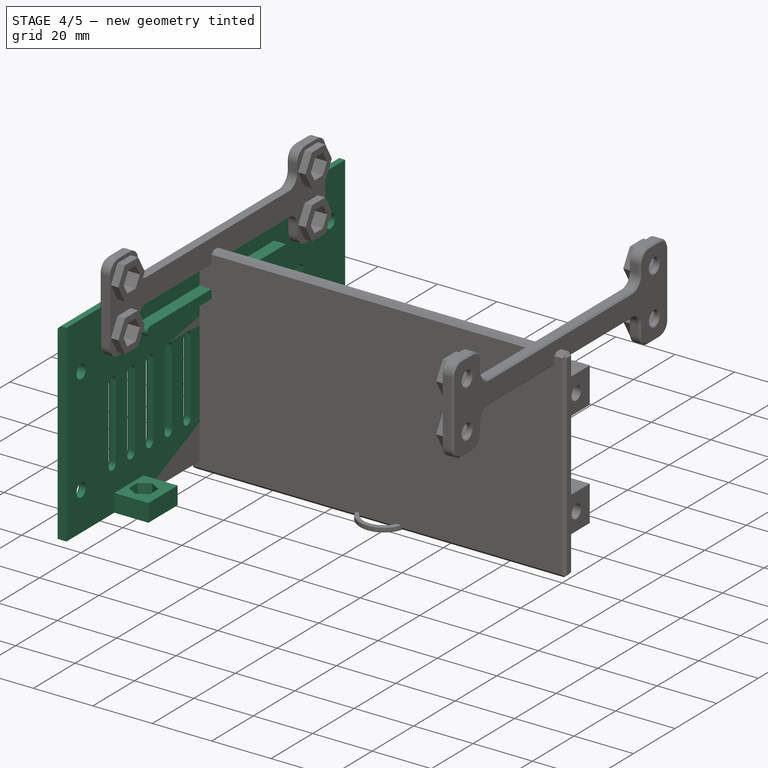
[diagram: stage 4 of 5 — iso view after this stage's code; geometry added in this stage tinted green]
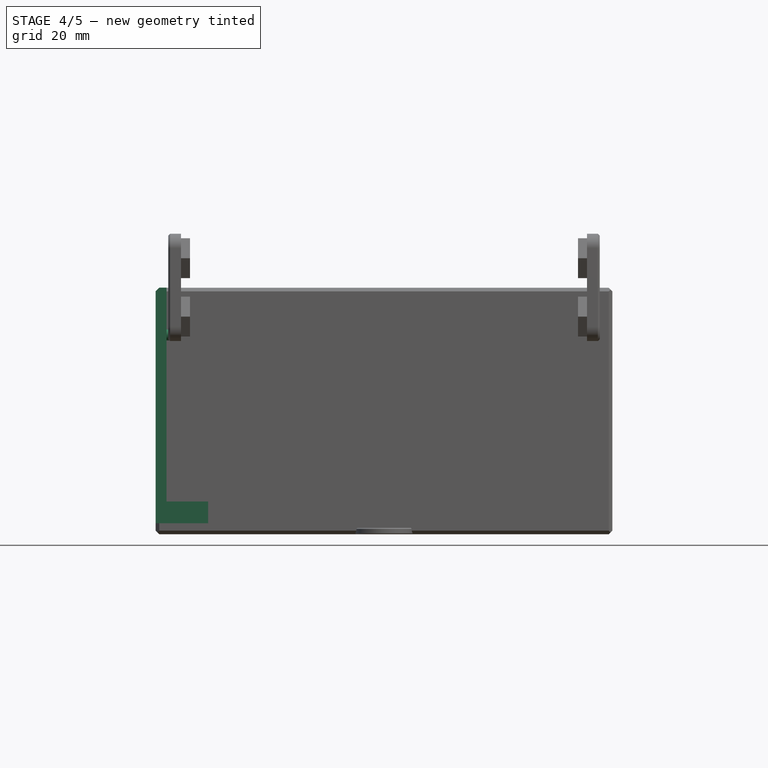
[diagram: stage 4 of 5 — front view after this stage's code; geometry added in this stage tinted green]
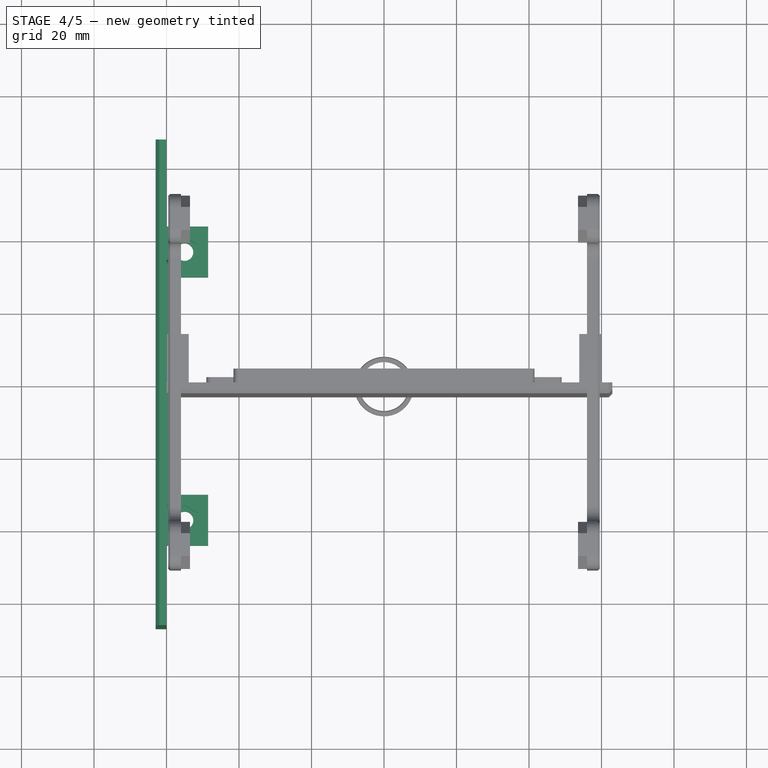
[diagram: stage 4 of 5 — top view after this stage's code; geometry added in this stage tinted green]
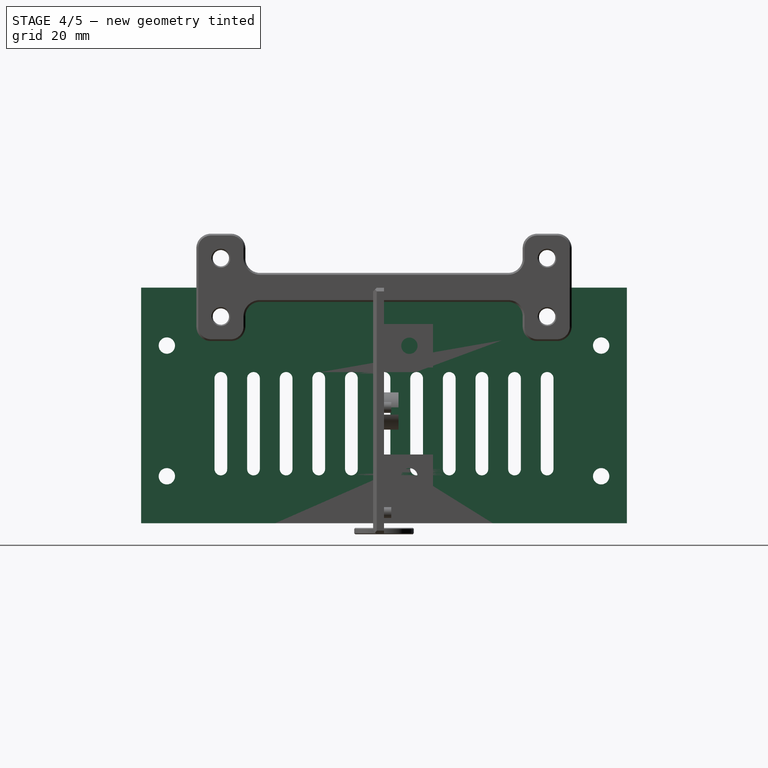
[diagram: stage 4 of 5 — right view after this stage's code; geometry added in this stage tinted green]
FEATURE [Sketcher::SketchObject] Sketch001  label="Sideplate spec"
  FullyConstrained = false
  MapMode = 5
  Placement = pos=(0,0,0) rot=(1,0,0;1.5708rad)
  Support = -> [XZ_Plane001]
  sketch-geometry (4):
    g0: LineSegment StartX=-60 StartY=3.05 StartZ=0 EndX=-63 EndY=3.05 EndZ=0
    g1: LineSegment StartX=-63 StartY=3.05 StartZ=0 EndX=-63 EndY=68.05 EndZ=0
    g2: LineSegment StartX=-63 StartY=68.05 StartZ=0 EndX=-60 EndY=68.05 EndZ=0
    g3: LineSegment StartX=-60 StartY=68.05 StartZ=0 EndX=-60 EndY=3.05 EndZ=0
  constraints (12):
    c: Coincident(g0,g1)
    c: Coincident(g1,g2)
    c: Coincident(g2,g3)
    c: Horizontal(g0)
    c: Horizontal(g2)
    c: Vertical(g3)
    c: Vertical(g1)
    c: Distance(g1) = 65
    c: Distance(g2) = 3
    c: DistanceX(g0) = -63
    c: DistanceY(g0) = 3.05
    c: Coincident(g3,g0)
FEATURE [PartDesign::Pad] Pad001  label="Make sideplate"
  AllowMultiFace = false
  Direction = (1,1,1)
  Length = 134
  Length2 = 100
  Midplane = true
  Placement = pos=(0,0,0) rot=(1,0,0;1.5708rad)
  Profile = -> Sketch001
  Type = 0
FEATURE [Sketcher::SketchObject] Sketch002  label="Screwtab spec"
  ExternalGeometry = -> [Pad001]
  FullyConstrained = false
  MapMode = 5
  Placement = pos=(0,0,3.05) rot=(1,0,0;3.14159rad)
  Support = -> [Pad001]
  sketch-geometry (13):
    g0: LineSegment StartX=-60 StartY=44 StartZ=0 EndX=-48.5 EndY=44 EndZ=0
    g1: LineSegment StartX=-48.5 StartY=44 StartZ=0 EndX=-48.5 EndY=30 EndZ=0
    g2: LineSegment StartX=-48.5 StartY=30 StartZ=0 EndX=-60 EndY=30 EndZ=0
    g3: LineSegment StartX=-60 StartY=30 StartZ=0 EndX=-60 EndY=44 EndZ=0
    g4: LineSegment StartX=-60 StartY=37 StartZ=0 EndX=-48.5 EndY=37 EndZ=0
    g5: Circle CenterX=-55 CenterY=37 CenterZ=0 NormalX=0 NormalY=0 NormalZ=1 AngleXU=0 Radius=2.4
    g6: LineSegment StartX=-51.5 StartY=34.9793 StartZ=0 EndX=-51.5 EndY=39.0207 EndZ=0
    g7: LineSegment StartX=-51.5 StartY=39.0207 StartZ=0 EndX=-55 EndY=41.0415 EndZ=0
    g8: LineSegment StartX=-55 StartY=41.0415 StartZ=0 EndX=-58.5 EndY=39.0207 EndZ=0
    g9: LineSegment StartX=-58.5 StartY=39.0207 StartZ=0 EndX=-58.5 EndY=34.9793 EndZ=0
    g10: LineSegment StartX=-58.5 StartY=34.9793 StartZ=0 EndX=-55 EndY=32.9585 EndZ=0
    g11: LineSegment StartX=-55 StartY=32.9585 StartZ=0 EndX=-51.5 EndY=34.9793 EndZ=0
    g12: Circle CenterX=-55 CenterY=37 CenterZ=0 NormalX=0 NormalY=0 NormalZ=1 AngleXU=0 Radius=4.04145
  constraints (34):
    c: Coincident(g0,g1)
    c: Coincident(g1,g2)
    c: Coincident(g2,g3)
    c: Coincident(g3,g0)
    c: Horizontal(g0)
    c: Horizontal(g2)
    c: Vertical(g1)
    c: Vertical(g3)
    c: Perpendicular(g4,g1) = 4.71239
    c: PointOnObject(g4,g3)
    c: PointOnObject(g5,g4)
    c: PointOnObject(g0,g-3)
    c: Symmetric(g0,g1,g4)
    c: DistanceY(g5,g-3) = 30
    c: DistanceX(g-4,g5) = 8
    c: Coincident(g6,g7)
    c: Coincident(g7,g8)
    c: Coincident(g8,g9)
    c: Coincident(g9,g10)
    c: Coincident(g10,g11)
    c: Coincident(g11,g6)
    c: Equal(g6, g7-g11) x5
    c: PointOnObject(g6,g12)
    c: PointOnObject(g7,g12)
    c: PointOnObject(g8,g12)
    c: PointOnObject(g9,g12)
    c: PointOnObject(g10,g12)
    c: PointOnObject(g11,g12)
    c: Coincident(g12,g5)
    c: Vertical(g6)
    c: DistanceX(g9,g6) = 7
    c: DistanceX(g6,g0) = 3
    c: Distance(g1) = 14
    c: Radius(g5) = 2.4
FEATURE [PartDesign::Pad] Pad002  label="Add screwtab"
  AllowMultiFace = false
  BaseFeature = -> Pad001
  Direction = (1,1,1)
  Length = 6
  Length2 = 100
  Placement = pos=(0,0,0) rot=(1,0,0;1.5708rad)
  Profile = -> Sketch002
  Reversed = true
  Type = 0
FEATURE [PartDesign::Mirrored] Mirrored  label="Mirrored screwtab"
  BaseFeature = -> Pad002
  MirrorPlane = -> XZ_Plane001
  Originals = -> [Pad002]
  Placement = pos=(0,0,0) rot=(1,0,0;1.5708rad)
FEATURE [Sketcher::SketchObject] Sketch003  label="nut trap spec"
  ExternalGeometry = -> [Mirrored]
  FullyConstrained = true
  MapMode = 5
  Placement = pos=(0,-2e-15,9.05) rot=(0,0,1;3.14159rad)
  Support = -> [Mirrored]
  sketch-geometry (7):
    g0: LineSegment StartX=58.55 StartY=34.9504 StartZ=0 EndX=58.55 EndY=39.0496 EndZ=0
    g1: LineSegment StartX=58.55 StartY=39.0496 StartZ=0 EndX=55 EndY=41.0992 EndZ=0
    g2: LineSegment StartX=55 StartY=41.0992 StartZ=0 EndX=51.45 EndY=39.0496 EndZ=0
    g3: LineSegment StartX=51.45 StartY=39.0496 StartZ=0 EndX=51.45 EndY=34.9504 EndZ=0
    g4: LineSegment StartX=51.45 StartY=34.9504 StartZ=0 EndX=55 EndY=32.9008 EndZ=0
    g5: LineSegment StartX=55 StartY=32.9008 StartZ=0 EndX=58.55 EndY=34.9504 EndZ=0
    g6: Circle CenterX=55 CenterY=37 CenterZ=0 NormalX=0 NormalY=0 NormalZ=1 AngleXU=0 Radius=4.09919
  constraints (16):
    c: Coincident(g0,g1)
    c: Coincident(g1,g2)
    c: Coincident(g2,g3)
    c: Coincident(g3,g4)
    c: Coincident(g4,g5)
    c: Coincident(g5,g0)
    c: Equal(g0, g1-g5) x5
    c: PointOnObject(g0,g6)
    c: PointOnObject(g1,g6)
    c: PointOnObject(g2,g6)
    c: PointOnObject(g3,g6)
    c: PointOnObject(g4,g6)
    c: PointOnObject(g5,g6)
    c: Coincident(g6,g-3)
    c: Vertical(g0)
    c: Distance(g0,g3) = 7.1
FEATURE [PartDesign::Pocket] Pocket  label="Add nut trap"
  AllowMultiFace = false
  BaseFeature = -> Mirrored
  Length = 3.5
  Length2 = 100
  Placement = pos=(0,0,0) rot=(1,0,0;1.5708rad)
  Profile = -> Sketch003
  Type = 0
FEATURE [PartDesign::Mirrored] Mirrored001  label="Mirrored nut-trap"
  BaseFeature = -> Pocket
  MirrorPlane = -> XZ_Plane001
  Originals = -> [Pocket]
  Placement = pos=(0,0,0) rot=(1,0,0;1.5708rad)
FEATURE [Sketcher::SketchObject] Sketch014  label="Side mounting screwhole spec one end"
  ExternalGeometry = -> [Mirrored001]
  FullyConstrained = true
  MapMode = 5
  Placement = pos=(-63,0,0) rot=(0.707107,0,-0.707107;3.14159rad)
  Support = -> [Mirrored001]
  sketch-geometry (3):
    g0: Circle CenterX=-16 CenterY=59.9 CenterZ=0 NormalX=0 NormalY=0 NormalZ=1 AngleXU=0 Radius=2.25
    g1: Circle CenterX=-52.05 CenterY=59.9 CenterZ=0 NormalX=0 NormalY=0 NormalZ=1 AngleXU=0 Radius=2.25
    g2: LineSegment StartX=-52.05 StartY=59.9 StartZ=0 EndX=-16 EndY=59.9 EndZ=0
  constraints (8):
    c: Radius(g1) = 2.25
    c: Equal(g1,g0)
    c: Horizontal(g2)
    c: Coincident(g2,g1)
    c: Coincident(g2,g0)
    c: DistanceX(g0,g-3) = 12.95
    c: DistanceX(g-3,g1) = 16
    c: DistanceY(g0,g-3) = 7.1
FEATURE [PartDesign::Pocket] Pocket006  label="Add one end side-mounting screwholes"
  AllowMultiFace = false
  BaseFeature = -> Mirrored001
  Length = 5
  Length2 = 100
  Placement = pos=(0,0,0) rot=(1,0,0;1.5708rad)
  Profile = -> Sketch014
  Type = 1
FEATURE [PartDesign::Mirrored] Mirrored003  label="side mounting holes Mirrored"
  BaseFeature = -> Pocket006
  MirrorPlane = -> XZ_Plane001
  Originals = -> [Pocket006]
  Placement = pos=(0,0,0) rot=(1,0,0;1.5708rad)
FEATURE [Sketcher::SketchObject] Sketch016  label="Base to main-box interface hole spec"
  ExternalGeometry = -> [Mirrored003]
  FullyConstrained = true
  MapMode = 5
  Placement = pos=(-60,0,0) rot=(0.707107,0,0.707107;3.14159rad)
  Support = -> [Mirrored003]
  sketch-geometry (2):
    g0: Circle CenterX=60.05 CenterY=45 CenterZ=0 NormalX=0 NormalY=0 NormalZ=1 AngleXU=0 Radius=2.25
    g1: Circle CenterX=60.05 CenterY=-45 CenterZ=0 NormalX=0 NormalY=0 NormalZ=1 AngleXU=0 Radius=2.25
  constraints (5):
    c: Symmetric(g1,g0,g-1)
    c: Radius(g0) = 2.25
    c: Equal(g0,g1)
    c: DistanceY(g0,g-3) = 22
    c: DistanceX(g0,g-3) = 8
FEATURE [PartDesign::Pocket] Pocket007  label="Base to mainbox interface holes"
  AllowMultiFace = false
  BaseFeature = -> Mirrored003
  Length = 5
  Length2 = 100
  Placement = pos=(0,0,0) rot=(1,0,0;1.5708rad)
  Profile = -> Sketch016
  Type = 1
FEATURE [Sketcher::SketchObject] Sketch017  label="Grille slot"
  FullyConstrained = true
  MapMode = 5
  Placement = pos=(-63,0,0) rot=(0.707107,0,-0.707107;3.14159rad)
  Support = -> [Pocket007]
  sketch-geometry (4):
    g0: ArcOfCircle CenterX=-43 CenterY=45 CenterZ=0 NormalX=0 NormalY=0 NormalZ=1 AngleXU=0 Radius=1.75 StartAngle=1.5708 EndAngle=4.71239
    g1: ArcOfCircle CenterX=-18 CenterY=45 CenterZ=0 NormalX=0 NormalY=0 NormalZ=1 AngleXU=0 Radius=1.75 StartAngle=4.71239 EndAngle=7.85398
    g2: LineSegment StartX=-43 StartY=43.25 StartZ=0 EndX=-18 EndY=43.25 EndZ=0
    g3: LineSegment StartX=-43 StartY=46.75 StartZ=0 EndX=-18 EndY=46.75 EndZ=0
  constraints (10):
    c: Tangent(g0,g3) = 1.5708
    c: Tangent(g0,g2) = -1.5708
    c: Tangent(g2,g1) = -1.5708
    c: Tangent(g3,g1) = 1.5708
    c: Equal(g0,g1)
    c: Distance(g0,g0) = 3.5
    c: Distance(g3) = 25
    c: DistanceX(g1) = -18
    c: DistanceY(g1) = 45
    c: Horizontal(g3)
FEATURE [PartDesign::Pocket] Pocket008  label="Add grille slot"
  AllowMultiFace = false
  BaseFeature = -> Pocket007
  Length = 5
  Length2 = 100
  Placement = pos=(0,0,0) rot=(1,0,0;1.5708rad)
  Profile = -> Sketch017
  Type = 1
FEATURE [PartDesign::LinearPattern] LinearPattern  label="Make grille pattern"
  BaseFeature = -> Pocket008
  Direction = -> Sketch017 [V_Axis]
  Length = 90
  Occurrences = 11
  Originals = -> [Pocket008]
  Placement = pos=(0,0,0) rot=(1,0,0;1.5708rad)
  Reversed = true
FEATURE [PartDesign::Chamfer] Chamfer  label="Grille Chamfer"
  Angle = 45
  Base = -> LinearPattern [Edge106,Edge103,Edge97,Edge93,Edge85,Edge89,Edge81,Edge125,Edge121,Edge112,Edge116]
  BaseFeature = -> LinearPattern
  ChamferType = 0
  FlipDirection = false
  Placement = pos=(0,0,0) rot=(1,0,0;1.5708rad)
  Size = 1
  Size2 = 1
  SupportTransform = false
FEATURE [PartDesign::Chamfer] Chamfer005
  Angle = 45
  Base = -> Chamfer [Edge8]
  BaseFeature = -> Chamfer
  ChamferType = 0
  FlipDirection = false
  Placement = pos=(0,0,0) rot=(1,0,0;1.5708rad)
  Size = 1
  Size2 = 1
  SupportTransform = false
FEATURE [PartDesign::Body] Body  label="Base plate"
  Group = -> [Sketch,Pad,Sketch008,Pad005,Sketch009,Pocket017,Chamfer015]
  Origin = -> Origin
  Tip = -> Chamfer015
FEATURE [Sketcher::SketchObject] Sketch032
  FullyConstrained = true
  MapMode = 5
  Placement = pos=(-60,0,0) rot=(0.707107,0,0.707107;3.14159rad)
  Support = -> [Chamfer005]
  sketch-geometry (4):
    g0: ArcOfCircle CenterX=55 CenterY=32.5 CenterZ=0 NormalX=0 NormalY=0 NormalZ=1 AngleXU=0 Radius=1.5 StartAngle=5.59e-14 EndAngle=3.14159
    g1: ArcOfCircle CenterX=55 CenterY=-32.5 CenterZ=0 NormalX=0 NormalY=0 NormalZ=1 AngleXU=0 Radius=1.5 StartAngle=3.14159 EndAngle=6.28319
    g2: LineSegment StartX=53.5 StartY=32.5 StartZ=0 EndX=53.5 EndY=-32.5 EndZ=0
    g3: LineSegment StartX=56.5 StartY=32.5 StartZ=0 EndX=56.5 EndY=-32.5 EndZ=0
  constraints (9):
    c: Tangent(g0,g3) = 1.5708
    c: Tangent(g0,g2) = -1.5708
    c: Tangent(g2,g1) = -1.5708
    c: Tangent(g3,g1) = 1.5708
    c: Vertical(g2)
    c: Distance(g1,g1) = 3
    c: DistanceX(g1) = 55
    c: Symmetric(g1,g0,g-1)
    c: Distance(g3) = 65
FEATURE [PartDesign::Pad] Pad013
  AllowMultiFace = false
  BaseFeature = -> Chamfer005
  Direction = (1,1,1)
  Length = 4
  Length2 = 100
  Placement = pos=(0,0,0) rot=(1,0,0;1.5708rad)
  Profile = -> Sketch032
  Type = 0
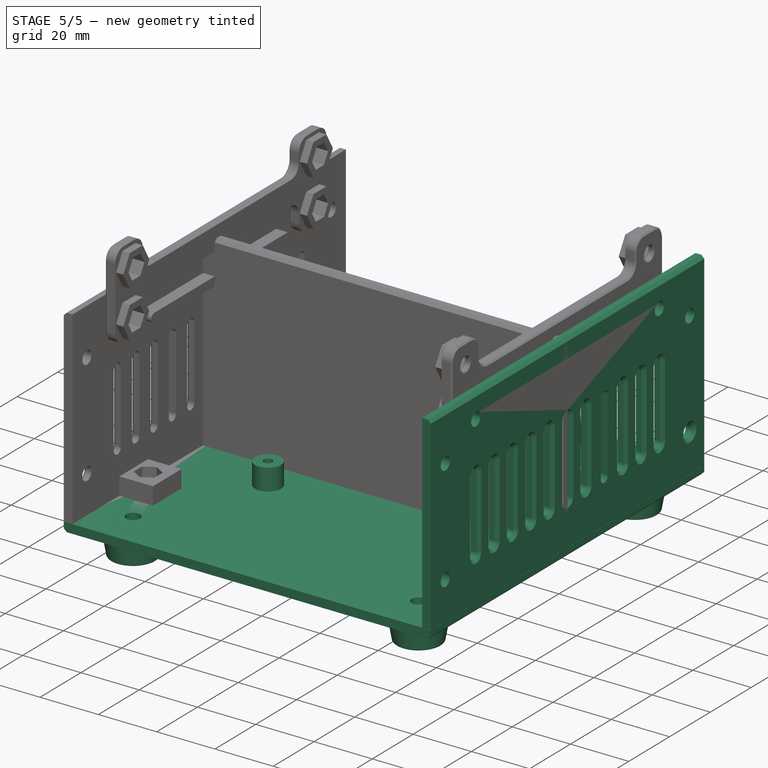
[diagram: stage 5 of 5 — iso view after this stage's code; geometry added in this stage tinted green]
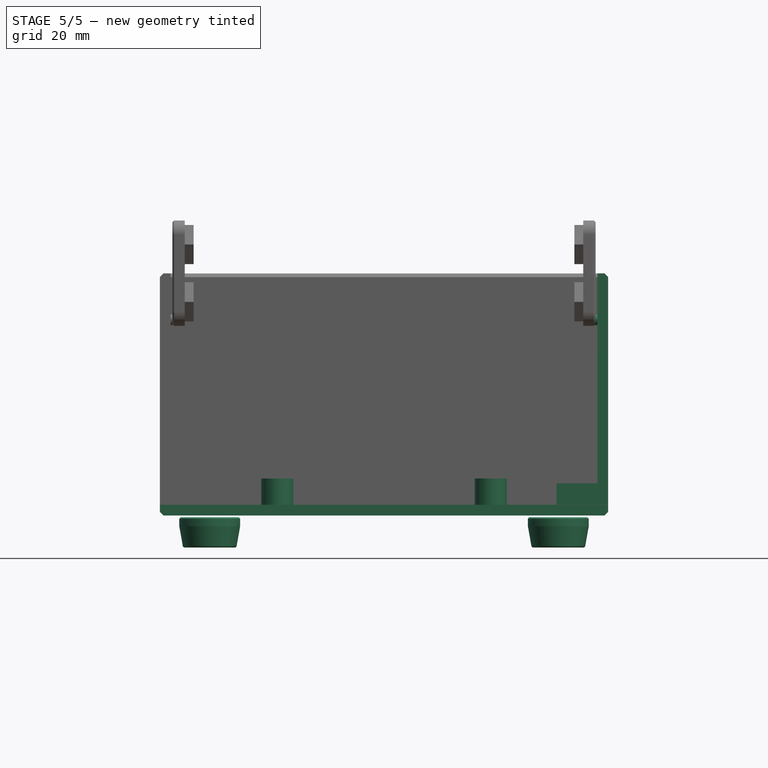
[diagram: stage 5 of 5 — front view after this stage's code; geometry added in this stage tinted green]
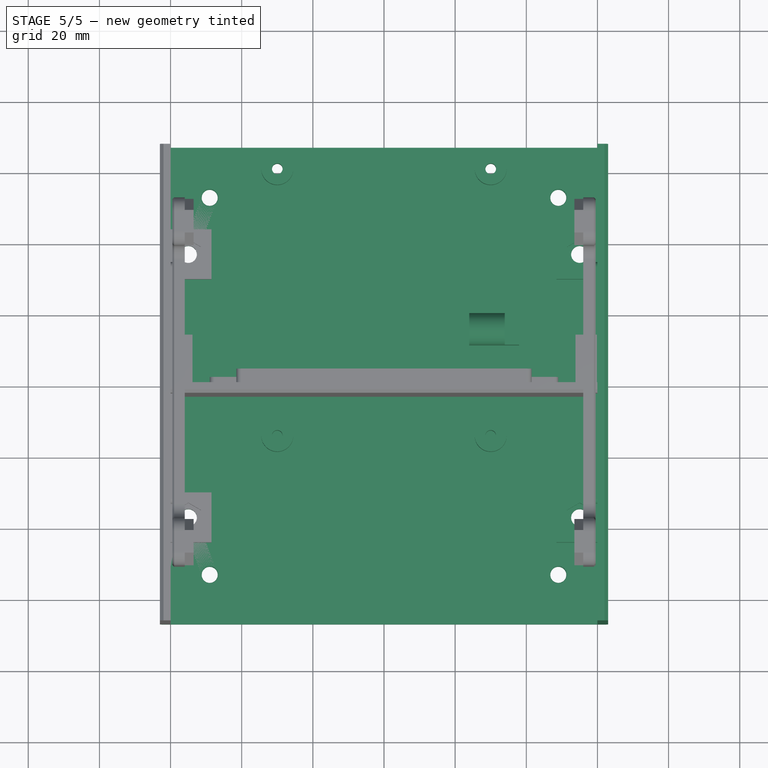
[diagram: stage 5 of 5 — top view after this stage's code; geometry added in this stage tinted green]
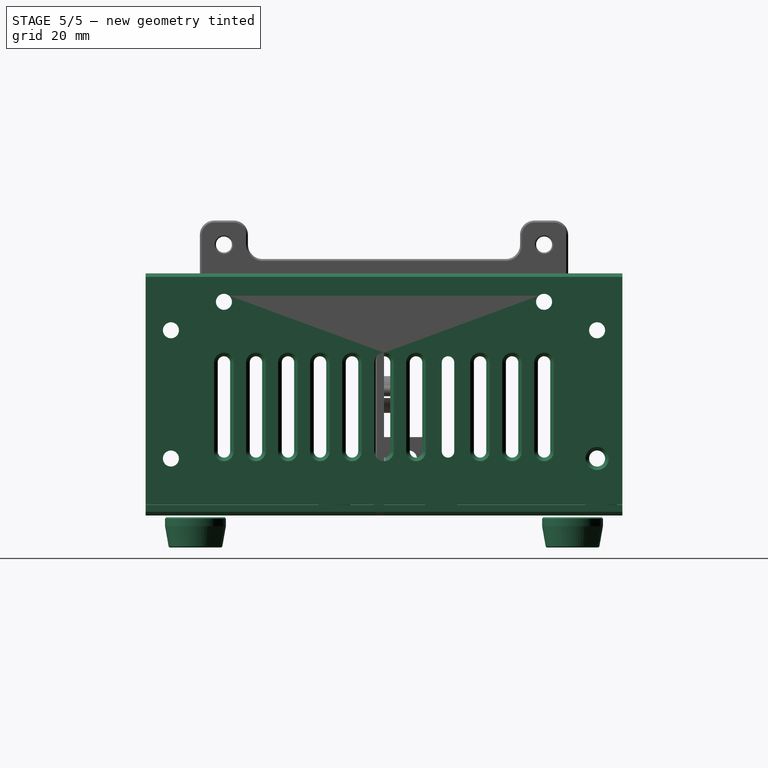
[diagram: stage 5 of 5 — right view after this stage's code; geometry added in this stage tinted green]
FEATURE [Sketcher::SketchObject] Sketch  label="Base plate spec"
  FullyConstrained = false
  MapMode = 5
  Support = -> [XY_Plane]
  sketch-geometry (12):
    g0: LineSegment StartX=-63 StartY=67 StartZ=0 EndX=63 EndY=67 EndZ=0
    g1: LineSegment StartX=63 StartY=67 StartZ=0 EndX=63 EndY=-67 EndZ=0
    g2: LineSegment StartX=63 StartY=-67 StartZ=0 EndX=-63 EndY=-67 EndZ=0
    g3: LineSegment StartX=-63 StartY=-67 StartZ=0 EndX=-63 EndY=67 EndZ=0
    g4: Circle CenterX=-49 CenterY=53 CenterZ=0 NormalX=0 NormalY=0 NormalZ=1 AngleXU=0 Radius=2.4
    g5: Circle CenterX=49 CenterY=53 CenterZ=0 NormalX=0 NormalY=0 NormalZ=1 AngleXU=0 Radius=2.4
    g6: Circle CenterX=-49 CenterY=-53 CenterZ=0 NormalX=0 NormalY=0 NormalZ=1 AngleXU=0 Radius=2.4
    g7: Circle CenterX=49 CenterY=-53 CenterZ=0 NormalX=0 NormalY=0 NormalZ=1 AngleXU=0 Radius=2.4
    g8: Circle CenterX=55 CenterY=37 CenterZ=0 NormalX=0 NormalY=0 NormalZ=1 AngleXU=0 Radius=2.4
    g9: Circle CenterX=-55 CenterY=37 CenterZ=0 NormalX=0 NormalY=0 NormalZ=1 AngleXU=0 Radius=2.4
    g10: Circle CenterX=-55 CenterY=-37 CenterZ=0 NormalX=0 NormalY=0 NormalZ=1 AngleXU=0 Radius=2.4
    g11: Circle CenterX=55 CenterY=-37 CenterZ=0 NormalX=0 NormalY=0 NormalZ=1 AngleXU=0 Radius=2.4
  constraints (28):
    c: Coincident(g0,g1)
    c: Coincident(g1,g2)
    c: Coincident(g2,g3)
    c: Coincident(g3,g0)
    c: Horizontal(g2)
    c: Vertical(g1)
    c: Symmetric(g0,g0,g-2)
    c: Symmetric(g0,g2,g-1)
    c: Distance(g0) = 126
    c: Distance(g3) = 134
    c: Radius(g4) = 2.4
    c: Equal(g4,g5)
    c: Equal(g4,g6)
    c: Equal(g4,g7)
    c: Symmetric(g4,g5,g-2)
    c: Symmetric(g4,g6,g-1)
    c: Symmetric(g7,g6,g-2)
    c: Distance(g4,g5) = 98
    c: DistanceY(g6,g4) = 106
    c: Symmetric(g10,g11,g-2)
    c: Symmetric(g9,g10,g-1)
    c: Symmetric(g9,g8,g-2)
    c: Radius(g9) = 2.4
    c: Equal(g9,g8)
    c: Equal(g9,g11)
    c: Equal(g9,g10)
    c: DistanceX(g0,g9) = 8
    c: DistanceY(g9,g0) = 30
FEATURE [PartDesign::Pad] Pad  label="Make base plate"
  AllowMultiFace = false
  Direction = (1,1,1)
  Length = 3
  Length2 = 100
  Profile = -> Sketch
  Type = 0
FEATURE [Sketcher::SketchObject] Sketch004  label="PCB Base"
  FullyConstrained = false
  MapMode = 5
  Support = -> [XY_Plane002]
  sketch-geometry (11):
    g0: LineSegment StartX=-50 StartY=35 StartZ=0 EndX=35 EndY=35 EndZ=0
    g1: LineSegment StartX=35 StartY=35 StartZ=0 EndX=35 EndY=-35 EndZ=0
    g2: LineSegment StartX=35 StartY=-35 StartZ=0 EndX=-50 EndY=-35 EndZ=0
    g3: LineSegment StartX=-50 StartY=-35 StartZ=0 EndX=-50 EndY=35 EndZ=0
    g4: Circle CenterX=-45 CenterY=-30 CenterZ=0 NormalX=0 NormalY=0 NormalZ=1 AngleXU=0 Radius=2.1
    g5: Circle CenterX=30 CenterY=-30 CenterZ=0 NormalX=0 NormalY=0 NormalZ=1 AngleXU=0 Radius=2.1
    g6: Circle CenterX=-45 CenterY=30 CenterZ=0 NormalX=0 NormalY=0 NormalZ=1 AngleXU=0 Radius=2.1
    g7: Circle CenterX=30 CenterY=30 CenterZ=0 NormalX=0 NormalY=0 NormalZ=1 AngleXU=0 Radius=2.1
    g8: LineSegment StartX=-7.5 StartY=35 StartZ=0 EndX=-7.5 EndY=-35 EndZ=0
    g9: LineSegment StartX=-50 StartY=-3.1e-15 StartZ=0 EndX=35 EndY=2.1e-15 EndZ=0
    g10: GeomPoint X=0 Y=0 Z=0
  constraints (28):
    c: Coincident(g0,g1)
    c: Coincident(g1,g2)
    c: Coincident(g2,g3)
    c: Coincident(g3,g0)
    c: Horizontal(g0)
    c: Horizontal(g2)
    c: Vertical(g1)
    c: Vertical(g3)
    c: Distance(g3) = 70
    c: Distance(g0) = 85
    c: Radius(g6) = 2.1
    c: Equal(g6,g7)
    c: Equal(g6,g4)
    c: Equal(g6,g5)
    c: Perpendicular(g9,g3) = 1.5708
    c: Perpendicular(g8,g0) = 1.5708
    c: PointOnObject(g8,g2)
    c: PointOnObject(g9,g1)
    c: Symmetric(g2,g0,g9)
    c: Symmetric(g0,g0,g8)
    c: Symmetric(g6,g7,g8)
    c: Symmetric(g4,g6,g9)
    c: Symmetric(g4,g5,g8)
    c: DistanceX(g2,g4) = 5
    c: DistanceY(g2,g4) = 5
    c: Coincident(g10,g-1)
    c: PointOnObject(g10,g9)
    c: DistanceX(g0) = 35
FEATURE [PartDesign::Pad] Pad003  label="Make PCB Laminate"
  AllowMultiFace = false
  Direction = (1,1,1)
  Length = 1.6
  Length2 = 100
  Profile = -> Sketch004
  Type = 0
FEATURE [Sketcher::SketchObject] Sketch005  label="DCJack footprint"
  ExternalGeometry = -> [Pad003]
  FullyConstrained = false
  MapMode = 5
  Placement = pos=(0,0,1.6) rot=(0,0,1;0rad)
  Support = -> [Pad003]
  sketch-geometry (7):
    g0: LineSegment StartX=23.95 StartY=20.45 StartZ=0 EndX=38 EndY=20.45 EndZ=0
    g1: LineSegment StartX=38 StartY=20.45 StartZ=0 EndX=38 EndY=11.45 EndZ=0
    g2: LineSegment StartX=38 StartY=11.45 StartZ=0 EndX=23.95 EndY=11.45 EndZ=0
    g3: LineSegment StartX=23.95 StartY=11.45 StartZ=0 EndX=23.95 EndY=20.45 EndZ=0
    g4: LineSegment StartX=38 StartY=15.95 StartZ=0 EndX=23.95 EndY=15.95 EndZ=0
    g5: LineSegment StartX=30.975 StartY=20.45 StartZ=0 EndX=30.975 EndY=11.45 EndZ=0
    g6: GeomPoint X=30.975 Y=15.95 Z=0
  constraints (19):
    c: Coincident(g0,g1)
    c: Coincident(g1,g2)
    c: Coincident(g2,g3)
    c: Coincident(g3,g0)
    c: Horizontal(g0)
    c: Horizontal(g2)
    c: Vertical(g1)
    c: Distance(g1) = 9
    c: Distance(g2) = 14.05
    c: Perpendicular(g4,g1) = 1.5708
    c: PointOnObject(g4,g3)
    c: Perpendicular(g5,g0) = 1.5708
    c: PointOnObject(g5,g2)
    c: Symmetric(g0,g0,g5)
    c: Symmetric(g2,g0,g4)
    c: PointOnObject(g6,g5)
    c: PointOnObject(g6,g4)
    c: DistanceY(g6,g-3) = 19.05
    c: DistanceX(g-3,g0) = 3
FEATURE [PartDesign::Pad] Pad004  label="DC Jack block"
  AllowMultiFace = false
  BaseFeature = -> Pad003
  Direction = (1,1,1)
  Length = 11
  Length2 = 100
  Profile = -> Sketch005
  Type = 0
FEATURE [Sketcher::SketchObject] Sketch006  label="hole and pin spec"
  ExternalGeometry = -> [Pad004]
  FullyConstrained = false
  MapMode = 5
  Placement = pos=(38,0,0) rot=(0.57735,0.57735,0.57735;2.0944rad)
  Support = -> [Pad004]
  sketch-geometry (3):
    g0: Circle CenterX=15.95 CenterY=8.1 CenterZ=0 NormalX=0 NormalY=0 NormalZ=1 AngleXU=0 Radius=3.25
    g1: LineSegment StartX=15.95 StartY=12.6 StartZ=0 EndX=15.95 EndY=11.35 EndZ=0
    g2: Circle CenterX=15.95 CenterY=8.1 CenterZ=0 NormalX=0 NormalY=0 NormalZ=1 AngleXU=0 Radius=1.05
  constraints (7):
    c: Perpendicular(g1,g0) = 4.71239
    c: Perpendicular(g1,g-3) = 4.71239
    c: Symmetric(g-3,g-3,g1)
    c: Radius(g0) = 3.25
    c: Distance(g1) = 1.25
    c: Coincident(g2,g0)
    c: Radius(g2) = 1.05
FEATURE [PartDesign::Pocket] Pocket001  label="Make hole and pin spec"
  AllowMultiFace = false
  BaseFeature = -> Pad004
  Length = 9.5
  Length2 = 100
  Profile = -> Sketch006
  Type = 0
FEATURE [PartDesign::Fillet] Fillet  label="Finish pin"
  Base = -> Pocket001 [Edge46]
  BaseFeature = -> Pocket001
  Radius = 0.5
  SupportTransform = false
FEATURE [Sketcher::SketchObject] Sketch007  label="Unneccesary back face decor"
  ExternalGeometry = -> [Fillet]
  FullyConstrained = false
  MapMode = 5
  Placement = pos=(23.95,0,0) rot=(0.57735,-0.57735,-0.57735;2.0944rad)
  Support = -> [Fillet]
  sketch-geometry (5):
    g0: ArcOfCircle CenterX=-15.95 CenterY=7.95 CenterZ=0 NormalX=0 NormalY=0 NormalZ=1 AngleXU=0 Radius=4.5 StartAngle=0 EndAngle=3.14159
    g1: LineSegment StartX=-20.45 StartY=7.95 StartZ=0 EndX=-20.45 EndY=12.6 EndZ=0
    g2: LineSegment StartX=-20.45 StartY=12.6 StartZ=0 EndX=-11.45 EndY=12.6 EndZ=0
    g3: LineSegment StartX=-11.45 StartY=12.6 StartZ=0 EndX=-11.45 EndY=7.95 EndZ=0
    g4: LineSegment StartX=-15.95 StartY=12.45 StartZ=0 EndX=-15.95 EndY=12.6 EndZ=0
  constraints (11):
    c: Coincident(g1,g2)
    c: Coincident(g2,g3)
    c: Vertical(g3)
    c: Vertical(g1)
    c: Coincident(g1,g-5)
    c: Coincident(g2,g-4)
    c: Tangent(g0,g3) = 1.5708
    c: Tangent(g1,g0) = 1.5708
    c: Perpendicular(g4,g2) = 4.71239
    c: Perpendicular(g4,g0) = 1.5708
    c: Distance(g4) = 0.15
FEATURE [PartDesign::Pocket] Pocket002  label="Add jack back decor"
  AllowMultiFace = false
  BaseFeature = -> Fillet
  Length = 10
  Length2 = 100
  Profile = -> Sketch007
  Type = 0
FEATURE [PartDesign::Body] Body002  label="PCB"
  Group = -> [Sketch004,Pad003,Sketch005,Pad004,Sketch006,Pocket001,Fillet,Sketch007,Pocket002]
  Origin = -> Origin002
  Placement = pos=(0,31,10.6) rot=(0,0,1;1.5708rad)
  Tip = -> Pocket002
FEATURE [Sketcher::SketchObject] Sketch008  label="PCB Mounting pillar spec"
  FullyConstrained = false
  MapMode = 5
  Placement = pos=(0,0,3) rot=(0,0,1;0rad)
  Support = -> [Pad]
  sketch-geometry (10):
    g0: LineSegment StartX=-30 StartY=61 StartZ=0 EndX=30 EndY=61 EndZ=0
    g1: LineSegment StartX=30 StartY=61 StartZ=0 EndX=30 EndY=-14 EndZ=0
    g2: LineSegment StartX=30 StartY=-14 StartZ=0 EndX=-30 EndY=-14 EndZ=0
    g3: LineSegment StartX=-30 StartY=-14 StartZ=0 EndX=-30 EndY=61 EndZ=0
    g4: Circle CenterX=-30 CenterY=61 CenterZ=0 NormalX=0 NormalY=0 NormalZ=1 AngleXU=0 Radius=4.5
    g5: Circle CenterX=30 CenterY=61 CenterZ=0 NormalX=0 NormalY=0 NormalZ=1 AngleXU=0 Radius=4.5
    g6: Circle CenterX=-30 CenterY=-14 CenterZ=0 NormalX=0 NormalY=0 NormalZ=1 AngleXU=0 Radius=4.5
    g7: Circle CenterX=30 CenterY=-14 CenterZ=0 NormalX=0 NormalY=0 NormalZ=1 AngleXU=0 Radius=4.5
    g8: LineSegment StartX=-2.3e-15 StartY=61 StartZ=0 EndX=2.3e-15 EndY=-14 EndZ=0
    g9: LineSegment StartX=-30 StartY=23.5 StartZ=0 EndX=0 EndY=23.5 EndZ=0
  constraints (26):
    c: Coincident(g0,g1)
    c: Coincident(g1,g2)
    c: Coincident(g2,g3)
    c: Coincident(g3,g0)
    c: Horizontal(g0)
    c: Horizontal(g2)
    c: Vertical(g1)
    c: Vertical(g3)
    c: Distance(g0) = 60
    c: Distance(g3) = 75
    c: Coincident(g6,g2)
    c: Coincident(g7,g1)
    c: Coincident(g5,g0)
    c: Coincident(g4,g0)
    c: Radius(g4) = 4.5
    c: Equal(g4,g5)
    c: Equal(g4,g7)
    c: Equal(g4,g6)
    c: Perpendicular(g9,g3) = 1.5708
    c: Perpendicular(g8,g0) = 1.5708
    c: PointOnObject(g9,g8)
    c: PointOnObject(g8,g2)
    c: Symmetric(g5,g4,g8)
    c: Symmetric(g6,g4,g9)
    c: PointOnObject(g9,g-2)
    c: DistanceY(g4) = 61
FEATURE [PartDesign::Pad] Pad005  label="Add PCB Mounting pillars 7.4 high"
  AllowMultiFace = false
  BaseFeature = -> Pad
  Direction = (1,1,1)
  Length = 7.4
  Length2 = 100
  Profile = -> Sketch008
  Type = 0
FEATURE [Sketcher::SketchObject] Sketch023
  FullyConstrained = false
  MapMode = 5
  Placement = pos=(0,0,0) rot=(1,0,0;1.5708rad)
  Support = -> [XZ_Plane005]
  sketch-geometry (7):
    g0: LineSegment StartX=2.25 StartY=0 StartZ=0 EndX=2.25 EndY=2.5 EndZ=0
    g1: LineSegment StartX=2.25 StartY=2.5 StartZ=0 EndX=8.55796 EndY=2.5 EndZ=0
    g2: LineSegment StartX=8.55796 StartY=2.5 StartZ=0 EndX=8.55796 EndY=0 EndZ=0
    g3: LineSegment StartX=8.55796 StartY=0 StartZ=0 EndX=7.5 EndY=-6 EndZ=0
    g4: LineSegment StartX=7.5 StartY=-6 StartZ=0 EndX=4.25 EndY=-6 EndZ=0
    g5: LineSegment StartX=4.25 StartY=-6 StartZ=0 EndX=4.25 EndY=0 EndZ=0
    g6: LineSegment StartX=4.25 StartY=0 StartZ=0 EndX=2.25 EndY=0 EndZ=0
  constraints (21):
    c: Coincident(g0,g1)
    c: Coincident(g1,g2)
    c: Coincident(g2,g3)
    c: Coincident(g3,g4)
    c: Coincident(g4,g5)
    c: Coincident(g5,g6)
    c: Horizontal(g4)
    c: Horizontal(g1)
    c: Horizontal(g6)
    c: Coincident(g0,g6)
    c: Vertical(g0)
    c: DistanceX(g0) = 2.25
    c: PointOnObject(g0,g-1)
    c: Vertical(g5)
    c: Vertical(g2)
    c: Distance(g0) = 2.5
    c: Distance(g2) = 2.5
    c: DistanceX(g5) = 4.25
    c: Distance(g5) = 6
    c: Distance(g4) = 3.25
    c: Angle(g3,g4) = 1.74533
FEATURE [PartDesign::Revolution] Revolution
  AllowMultiFace = false
  Angle = 360
  Axis = (0,2e-16,1)
  Base = (0,0,0)
  Placement = pos=(0,0,0) rot=(1,0,0;1.5708rad)
  Profile = -> Sketch023
  ReferenceAxis = -> Sketch023 [V_Axis]
  Reversed = true
FEATURE [PartDesign::Fillet] Fillet001
  Base = -> Revolution [Face5]
  BaseFeature = -> Revolution
  Placement = pos=(0,0,0) rot=(1,0,0;1.5708rad)
  Radius = 0.5
  SupportTransform = false
FEATURE [PartDesign::Chamfer] Chamfer002
  Angle = 45
  Base = -> Fillet001 [Face5]
  BaseFeature = -> Fillet001
  ChamferType = 0
  FlipDirection = false
  Placement = pos=(0,0,0) rot=(1,0,0;1.5708rad)
  Size = 0.4
  Size2 = 1
  SupportTransform = false
FEATURE [PartDesign::Body] Body005  label="Foot"
  Group = -> [Sketch023,Revolution,Fillet001,Chamfer002]
  Origin = -> Origin005
  Placement = pos=(-49,-53,0) rot=(0,0,1;0rad)
  Tip = -> Chamfer002
FEATURE [Part::FeaturePython] Array001  label="Foot array"  # Draft array (typed FeaturePython)
  Angle = 360
  ArrayType = 0
  Axis = (0,0,1)
  Base = -> Body005
  Center = (0,0,0)
  Fuse = false
  IntervalAxis = (0,0,0)
  IntervalX = (98,0,0)
  IntervalY = (0,106,0)
  IntervalZ = (0,0,1)
  NumberPolar = 1
  NumberX = 2
  NumberY = 2
  NumberZ = 1
  Placement = pos=(0,0,-3) rot=(0,0,1;0rad)
FEATURE [PartDesign::Pocket] Pocket017  label="Add PCB Screwholes"
  AllowMultiFace = false
  BaseFeature = -> Pad005
  Length = 5
  Length2 = 100
  Profile = -> Sketch009
  Type = 1
FEATURE [PartDesign::Chamfer] Chamfer015
  Angle = 45
  Base = -> Pocket017 [Edge6,Edge9]
  BaseFeature = -> Pocket017
  ChamferType = 0
  FlipDirection = false
  Size = 1
  Size2 = 1
  SupportTransform = false
FEATURE [PartDesign::Body] Body001  label="LH Side plate"
  Group = -> [Sketch001,Pad001,Sketch002,Pad002,Mirrored,Sketch003,Pocket,Mirrored001,Sketch014,Pocket006,Mirrored003,Sketch016,Pocket007,Sketch017,Pocket008,LinearPattern,Chamfer,Chamfer005,Sketch032,Pad013]
  Origin = -> Origin001
  Tip = -> Pad013
FEATURE [Part::FeaturePython] Array  label="Sideplate array"  # Draft array (typed FeaturePython)
  Angle = 360
  ArrayType = 1
  Axis = (0,0,1)
  Base = -> Body001
  Center = (0,0,0)
  Fuse = false
  IntervalAxis = (0,0,0)
  IntervalX = (1,0,0)
  IntervalY = (0,1,0)
  IntervalZ = (0,0,1)
  NumberPolar = 2
  NumberX = 2
  NumberY = 2
  NumberZ = 1
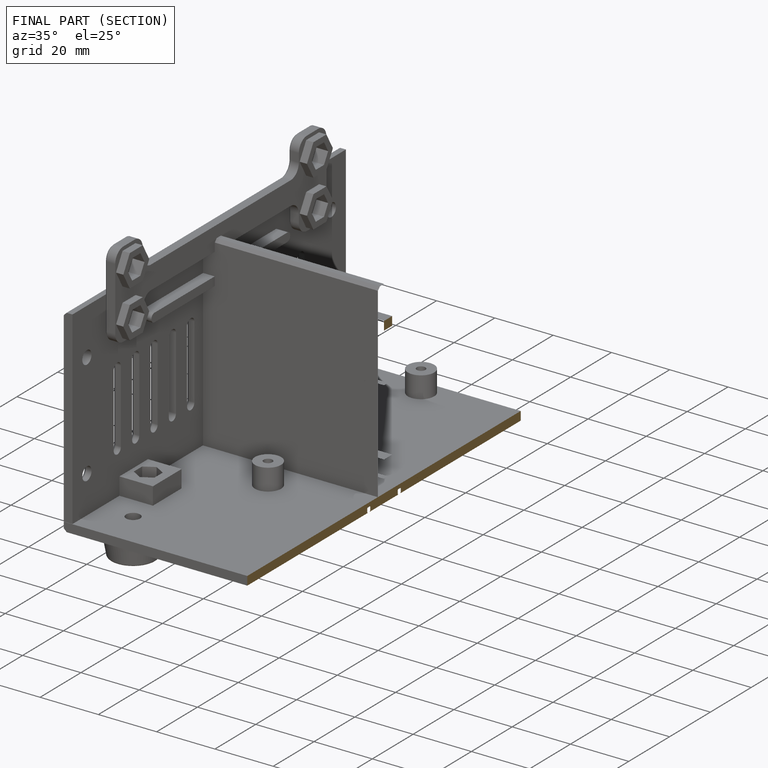
[diagram: finished part — half-section view (interior)]
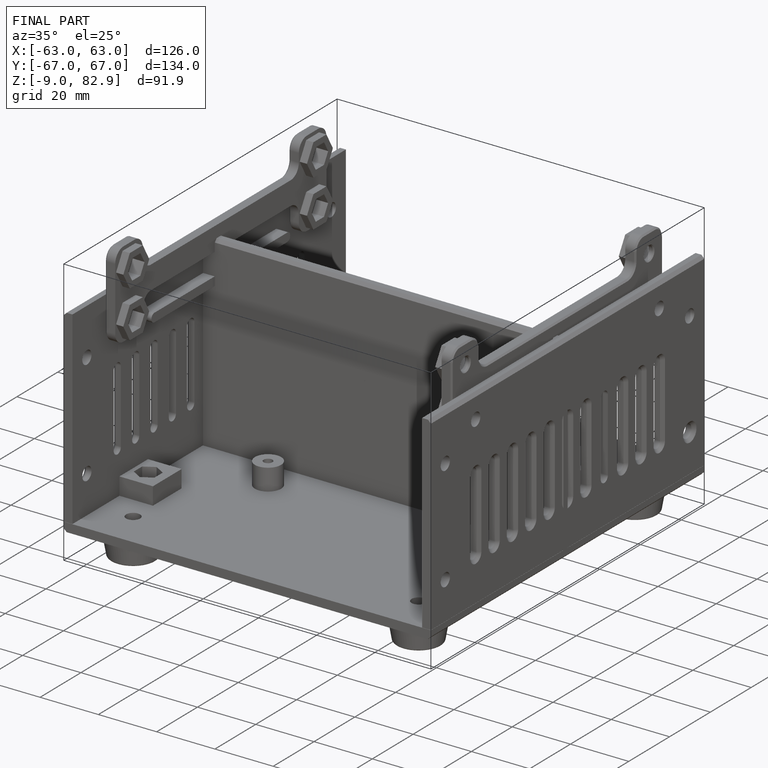
[diagram: finished part — iso view with bounding-box wireframe]
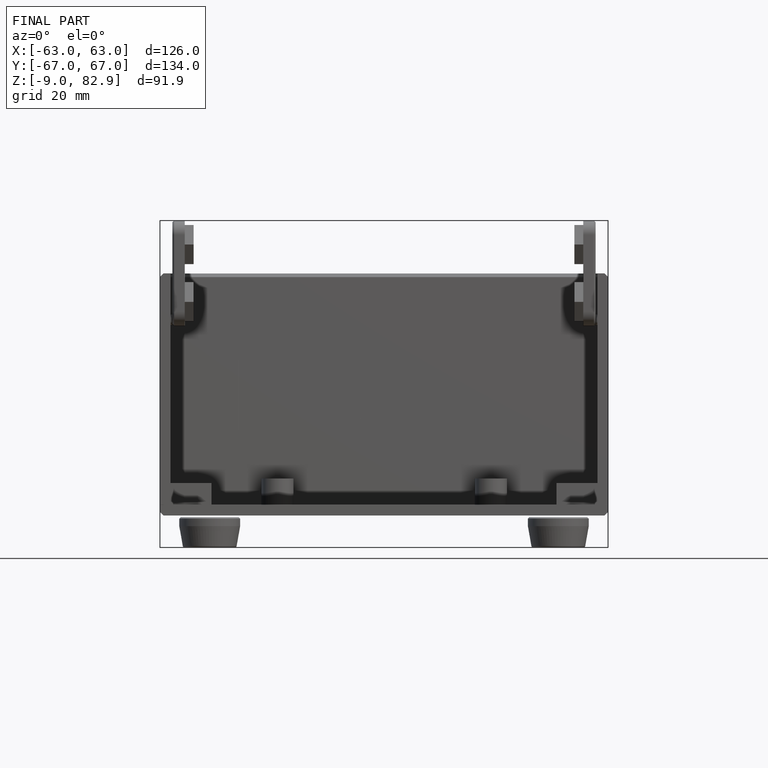
[diagram: finished part — front view with bounding-box wireframe]
